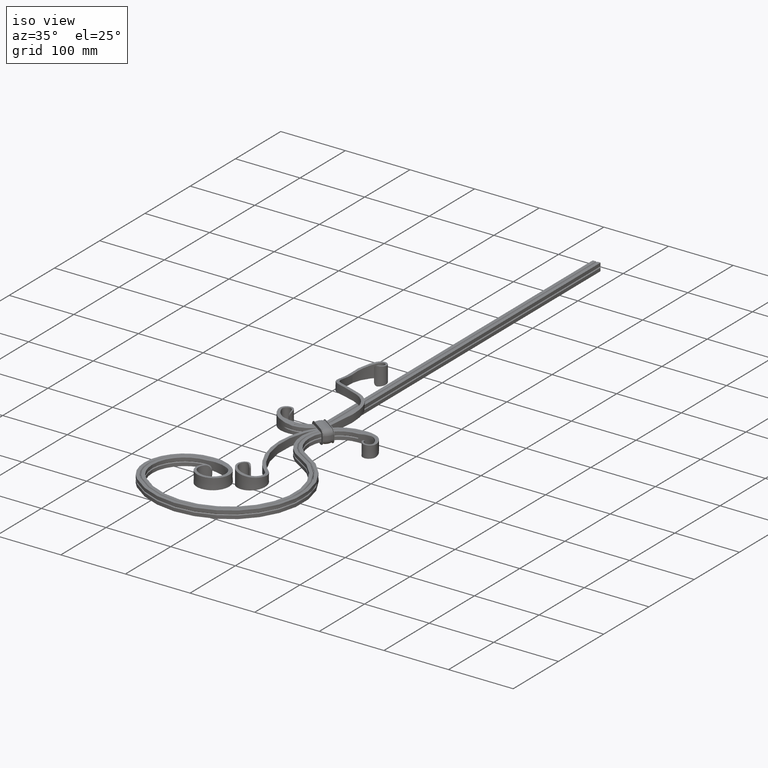
[diagram: clean part render]
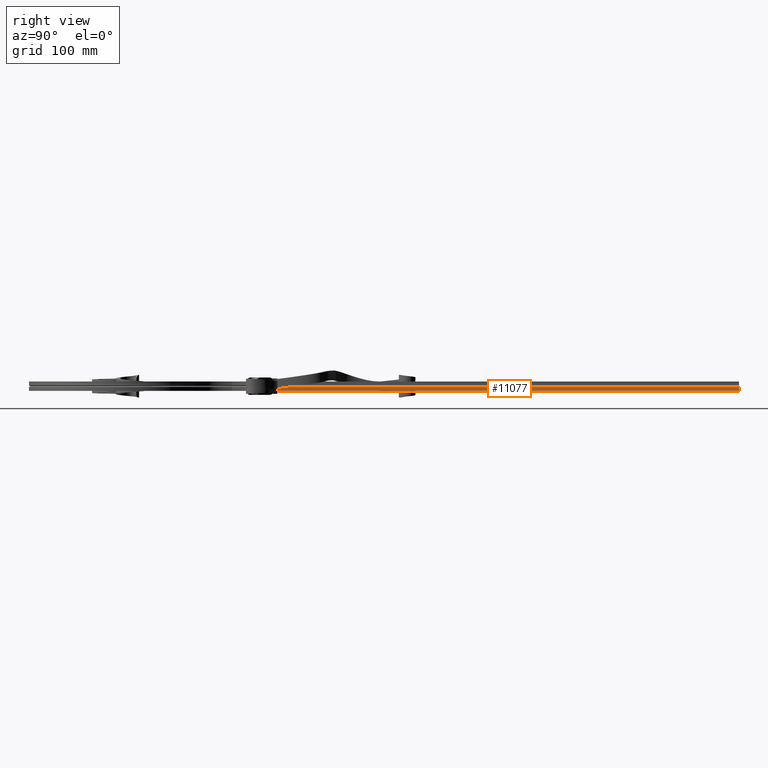
[diagram: tour spotlight — one face highlighted and labeled with its STEP entity id]
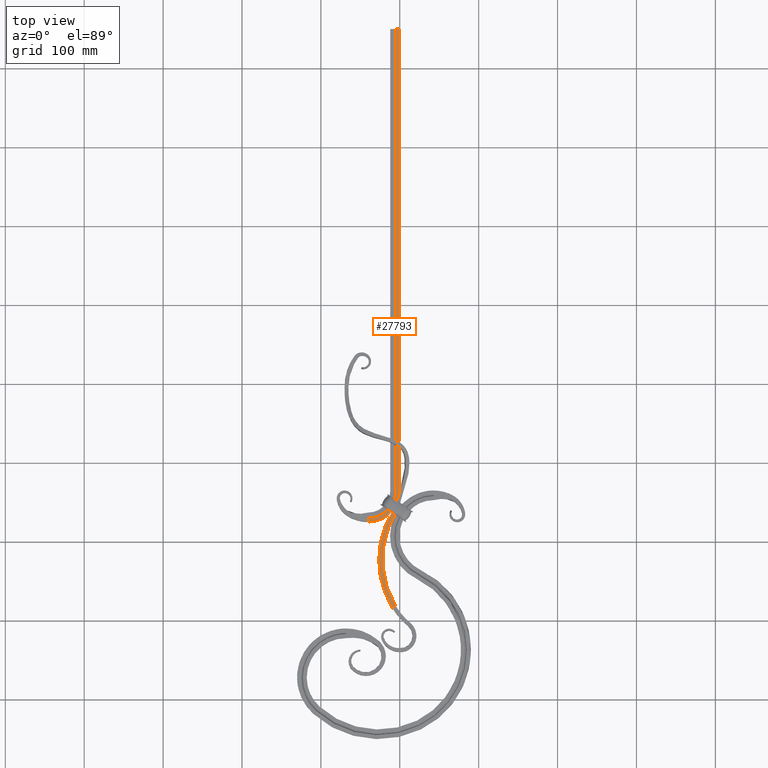
[diagram: tour spotlight — one face highlighted and labeled with its STEP entity id]
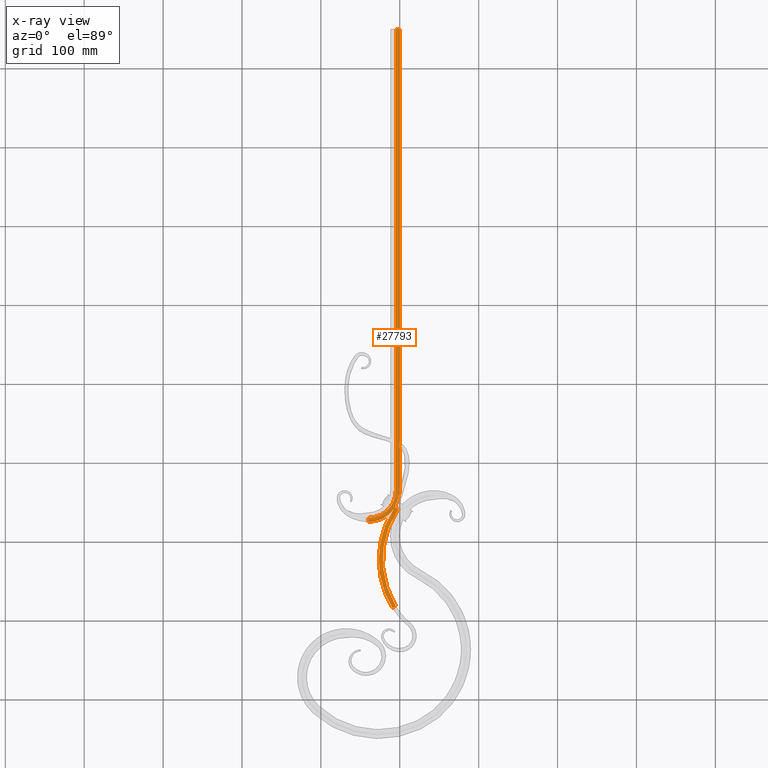
[diagram: x-ray of the same camera — body ghosted, this tour face saturated]
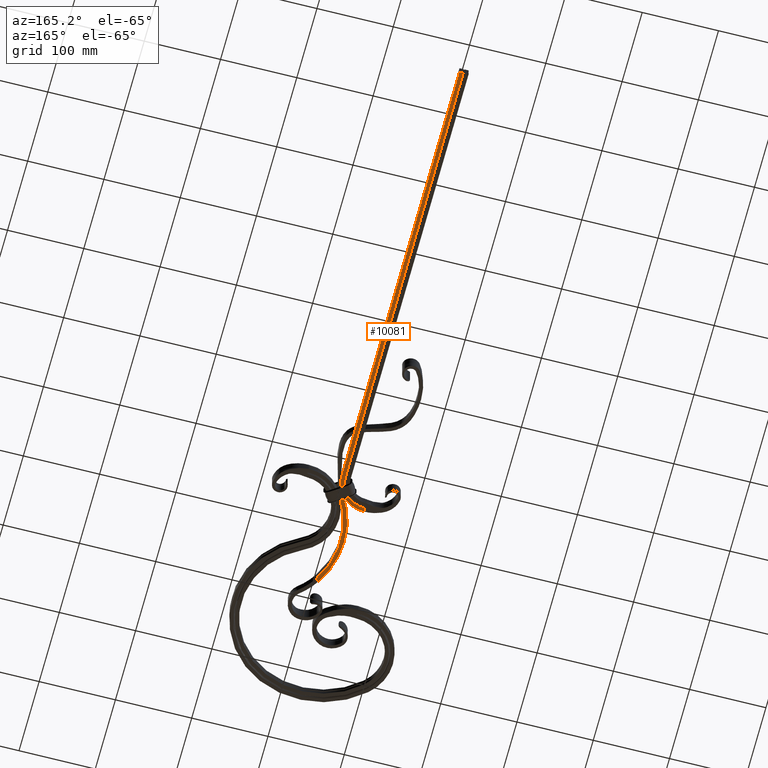
[diagram: tour spotlight — one face highlighted and labeled with its STEP entity id]
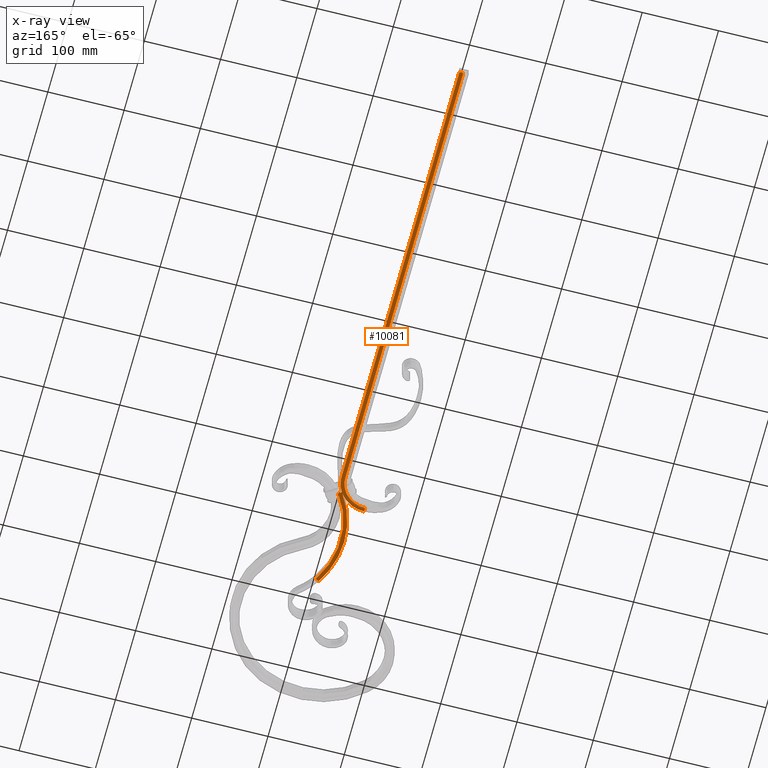
[diagram: x-ray of the same camera — body ghosted, this tour face saturated]
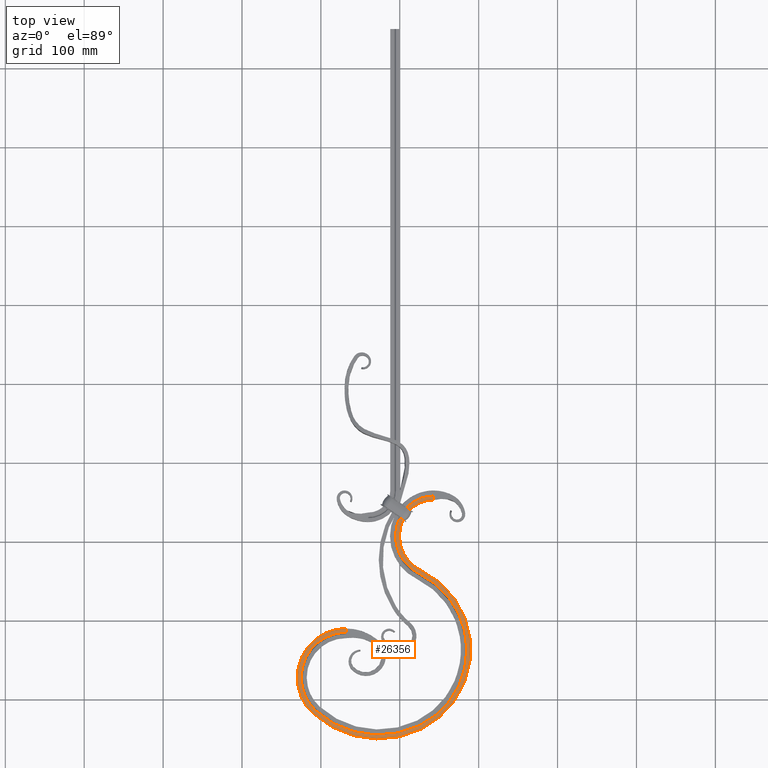
[diagram: tour spotlight — one face highlighted and labeled with its STEP entity id]
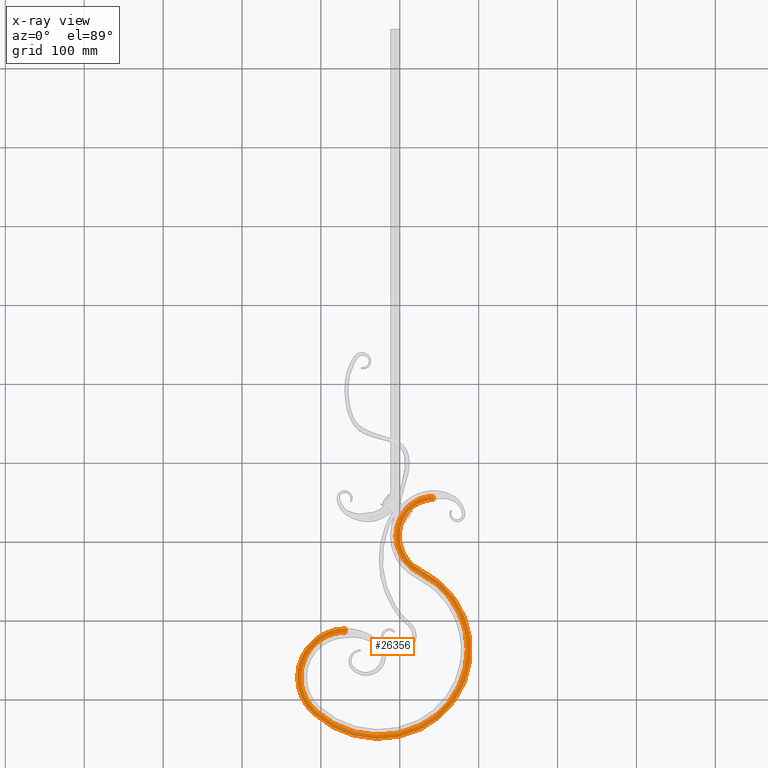
[diagram: x-ray of the same camera — body ghosted, this tour face saturated]
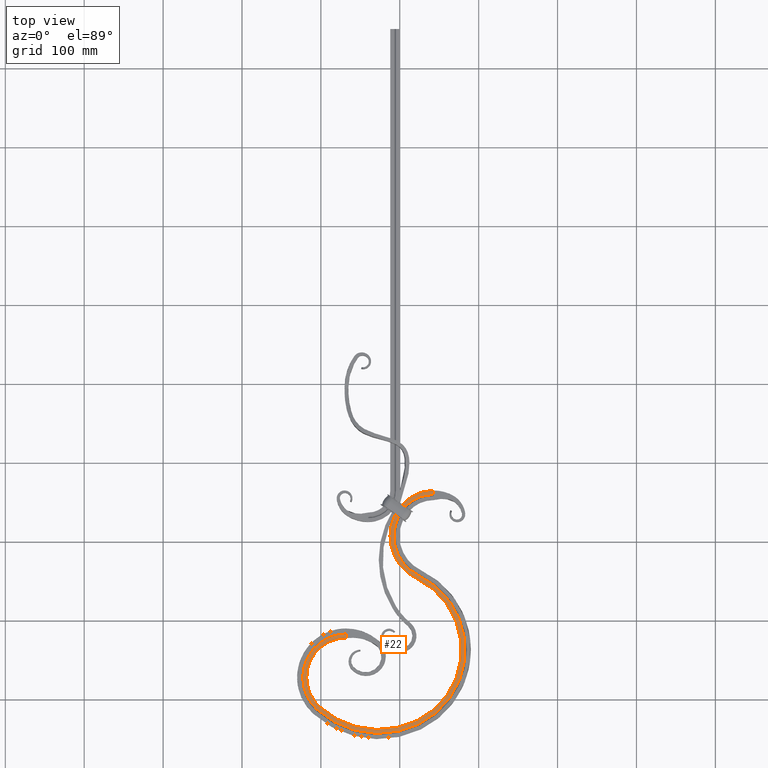
[diagram: tour spotlight — one face highlighted and labeled with its STEP entity id]
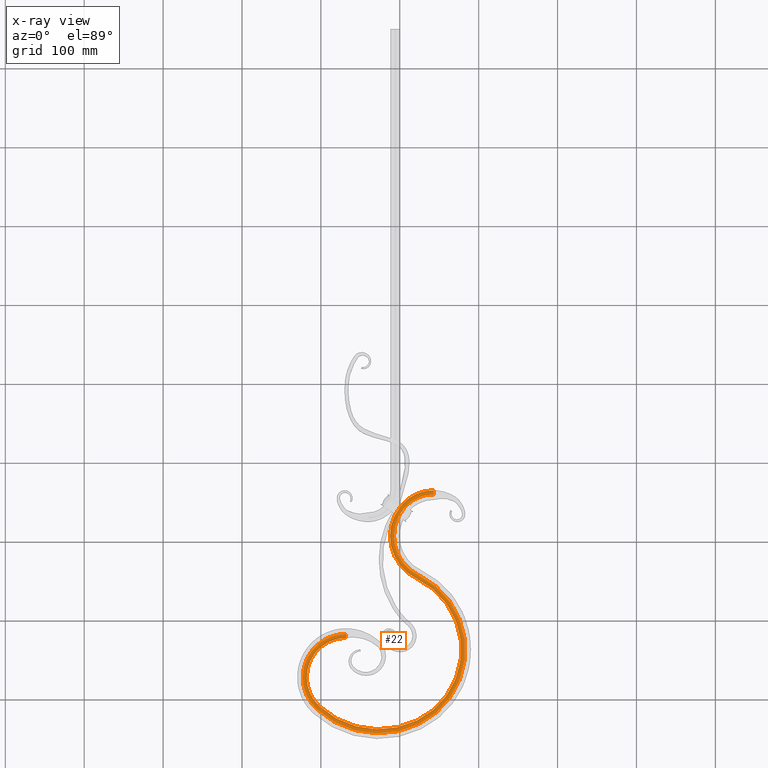
[diagram: x-ray of the same camera — body ghosted, this tour face saturated]
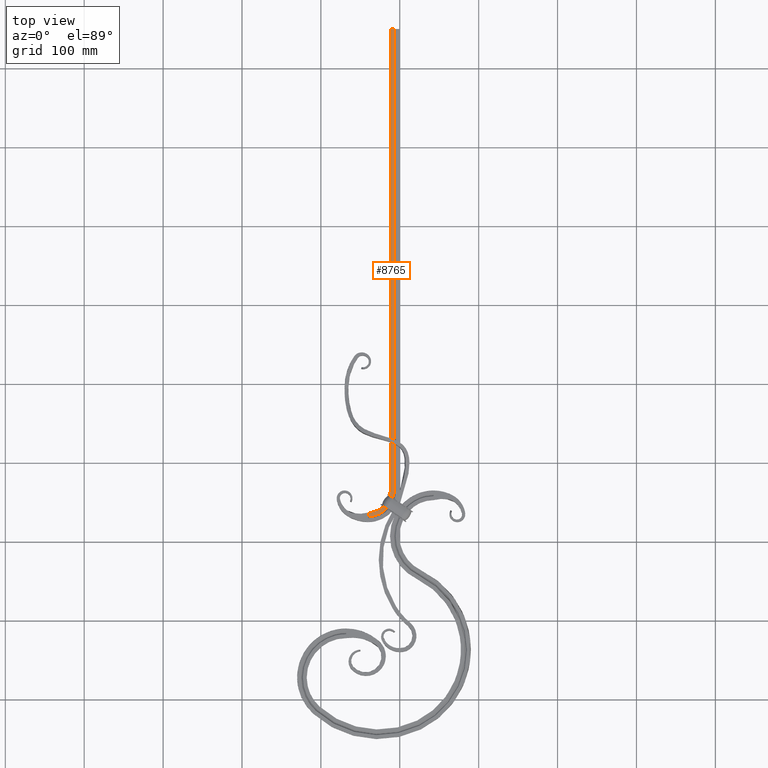
[diagram: tour spotlight — one face highlighted and labeled with its STEP entity id]
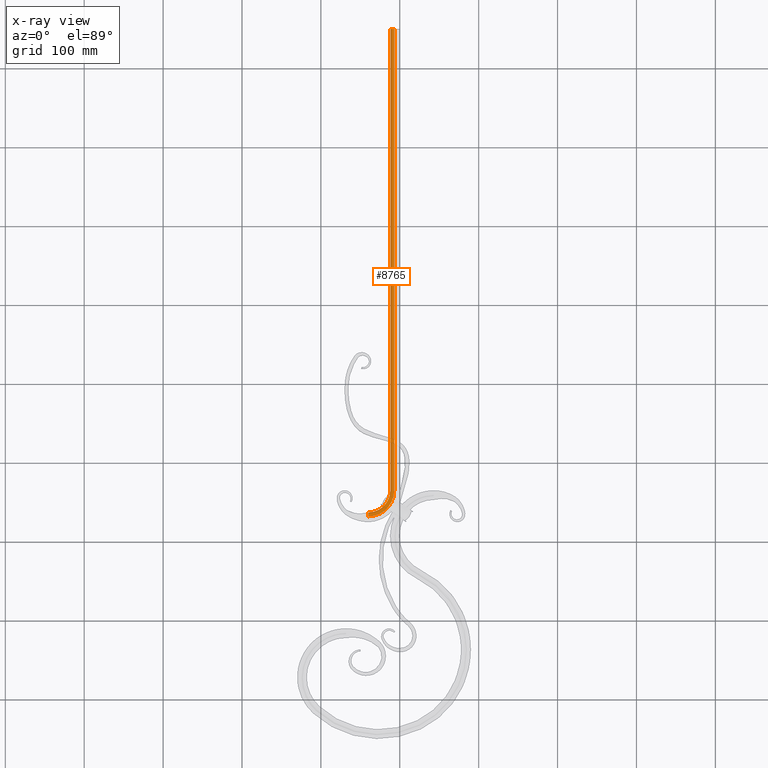
[diagram: x-ray of the same camera — body ghosted, this tour face saturated]
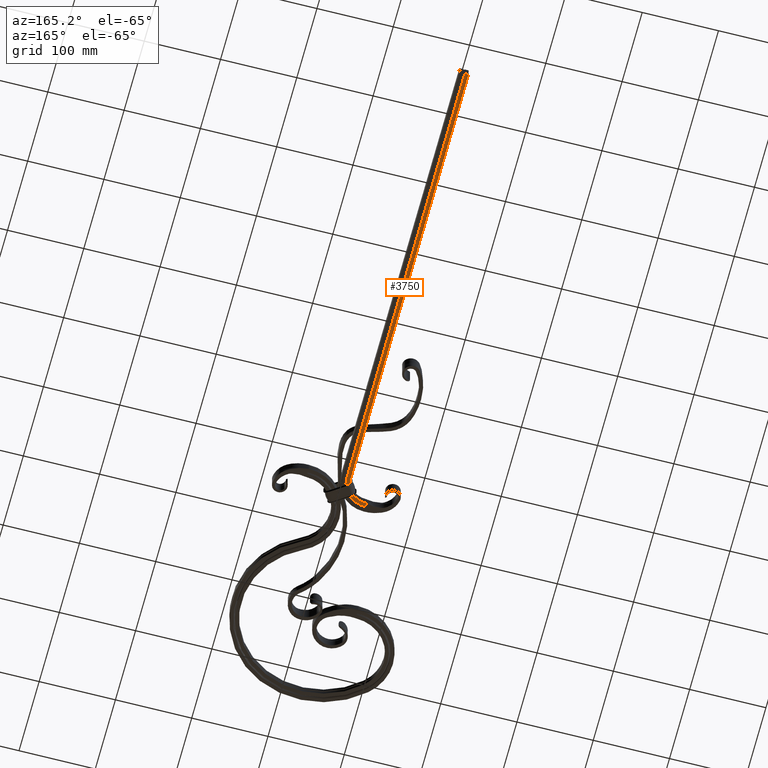
[diagram: tour spotlight — one face highlighted and labeled with its STEP entity id]
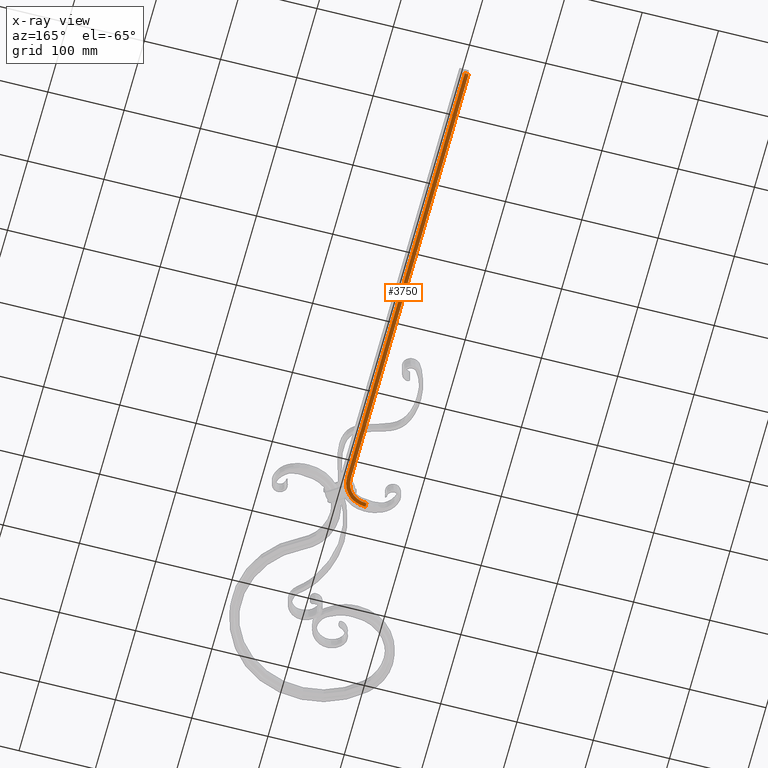
[diagram: x-ray of the same camera — body ghosted, this tour face saturated]
A machine part: a face-by-face anatomy tour. The part has 570 B-rep faces; the first image is the clean iso view, then the 7 largest visible faces are spotlighted one at a time (largest first), each with its STEP entity span.

Face 1 — right view, entity #11077. In plain terms, the highlighted planar face has unit normal (-1, -0, 0).
Definition (entity closure, byte-faithful):
#24 = PLANE ( 'NONE',  #18818 ) ;
#45 = EDGE_CURVE ( 'NONE', #18015, #22247, #25475, .T. ) ;
#377 = FACE_OUTER_BOUND ( 'NONE', #915, .T. ) ;
#915 = EDGE_LOOP ( 'NONE', ( #14862, #20525, #16439, #4296 ) ) ;
#2459 = EDGE_CURVE ( 'NONE', #27864, #4419, #27430, .T. ) ;
#2564 = CARTESIAN_POINT ( 'NONE',  ( -2.195194042401270522E-13, -135.0000000000023874, -1.000000000000000666 ) ) ;
#3125 = LINE ( 'NONE', #19917, #21328 ) ;
#4296 = ORIENTED_EDGE ( 'NONE', *, *, #2459, .T. ) ;
#4419 = VERTEX_POINT ( 'NONE', #9142 ) ;
#4887 = DIRECTION ( 'NONE',  ( 9.044284789280752063E-17, -1.000000000000000000, 0.000000000000000000 ) ) ;
#7293 = DIRECTION ( 'NONE',  ( -0.000000000000000000, -0.000000000000000000, -1.000000000000000000 ) ) ;
#8776 = DIRECTION ( 'NONE',  ( -0.000000000000000000, -0.000000000000000000, -1.000000000000000000 ) ) ;
#9109 = DIRECTION ( 'NONE',  ( 1.034903407035731979E-15, 1.000000000000000000, 0.000000000000000000 ) ) ;
#9142 = CARTESIAN_POINT ( 'NONE',  ( 1.734723475976807094E-15, 450.0000000000000000, -6.000000000000000000 ) ) ;
#9364 = CARTESIAN_POINT ( 'NONE',  ( -6.036837696399288689E-13, -135.0000000000023590, 6.000000000000000000 ) ) ;
#10157 = EDGE_CURVE ( 'NONE', #22247, #4419, #3125, .T. ) ;
#10348 = EDGE_CURVE ( 'NONE', #18015, #27864, #20657, .T. ) ;
#11077 = ADVANCED_FACE ( 'NONE', ( #377 ), #24, .F. ) ;
#12648 = CARTESIAN_POINT ( 'NONE',  ( 3.920475055707584033E-13, 450.0000000000000000, -1.000000000000004441 ) ) ;
#12870 = DIRECTION ( 'NONE',  ( -9.044284789280752063E-17, 1.000000000000000000, -0.000000000000000000 ) ) ;
#14169 = VECTOR ( 'NONE', #9109, 1000.000000000000000 ) ;
#14862 = ORIENTED_EDGE ( 'NONE', *, *, #10157, .F. ) ;
#15062 = VECTOR ( 'NONE', #12870, 1000.000000000000000 ) ;
#15558 = CARTESIAN_POINT ( 'NONE',  ( 1.734723475976807094E-15, 450.0000000000000000, 6.000000000000000000 ) ) ;
#16439 = ORIENTED_EDGE ( 'NONE', *, *, #10348, .T. ) ;
#18015 = VERTEX_POINT ( 'NONE', #28104 ) ;
#18234 = VECTOR ( 'NONE', #7293, 1000.000000000000000 ) ;
#18320 = DIRECTION ( 'NONE',  ( -1.000000000000000000, -9.044284789280752063E-17, 0.000000000000000000 ) ) ;
#18818 = AXIS2_PLACEMENT_3D ( 'NONE', #15558, #18320, #4887 ) ;
#19917 = CARTESIAN_POINT ( 'NONE',  ( 1.734723475976807094E-15, 450.0000000000000000, 6.000000000000000000 ) ) ;
#19966 = CARTESIAN_POINT ( 'NONE',  ( -6.036837696399288689E-13, -135.0000000000023590, -6.000000000000000000 ) ) ;
#20525 = ORIENTED_EDGE ( 'NONE', *, *, #45, .F. ) ;
#20657 = LINE ( 'NONE', #9364, #18234 ) ;
#21328 = VECTOR ( 'NONE', #8776, 1000.000000000000000 ) ;
#22247 = VERTEX_POINT ( 'NONE', #12648 ) ;
#23894 = CARTESIAN_POINT ( 'NONE',  ( 1.734723475976807094E-15, 450.0000000000000000, -6.000000000000000000 ) ) ;
#25475 = LINE ( 'NONE', #2564, #14169 ) ;
#27430 = LINE ( 'NONE', #23894, #15062 ) ;
#27864 = VERTEX_POINT ( 'NONE', #19966 ) ;
#28104 = CARTESIAN_POINT ( 'NONE',  ( -2.195194042401270522E-13, -135.0000000000023874, -1.000000000000000666 ) ) ;

Face 2 — top view, entity #27793. An x-ray twin of the same camera follows (body ghosted, this face saturated) — the face is partly hidden behind the body. In plain terms, the highlighted planar face has unit normal (-0, 0, -1).
Definition (entity closure, byte-faithful):
#224 = CARTESIAN_POINT ( 'NONE',  ( -5.895769711649699651, -155.9021883169973819, 6.000000000000000000 ) ) ;
#582 = CARTESIAN_POINT ( 'NONE',  ( -40.00000000000006395, -135.0000000000023590, 6.000000000000000000 ) ) ;
#698 = CIRCLE ( 'NONE', #9101, 112.5000000000000284 ) ;
#770 = VECTOR ( 'NONE', #23269, 1000.000000000000114 ) ;
#815 = EDGE_CURVE ( 'NONE', #27445, #22432, #6232, .T. ) ;
#1073 = CARTESIAN_POINT ( 'NONE',  ( -4.999999999999999112, 450.0000000000000000, 6.000000000000000000 ) ) ;
#1258 = B_SPLINE_CURVE_WITH_KNOTS ( 'NONE', 3,
 ( #19117, #12703, #16996, #10522, #14902, #6043, #16800 ),
 .UNSPECIFIED., .F., .F.,
 ( 4, 3, 4 ),
 ( 9.483367946369832002E-17, 0.001288718691506187276, 0.002577563415244754109 ),
 .UNSPECIFIED. ) ;
#1391 = DIRECTION ( 'NONE',  ( -1.000000000000000000, 0.000000000000000000, 0.000000000000000000 ) ) ;
#1580 = CARTESIAN_POINT ( 'NONE',  ( -1.802663818172167032, -79.13201271331921305, 6.000000009763361675 ) ) ;
#1768 = CARTESIAN_POINT ( 'NONE',  ( -5.108394884246761691, -281.4245608254663580, 6.000000000000005329 ) ) ;
#2156 = DIRECTION ( 'NONE',  ( -0.8230409562855532934, 0.5679820281281460215, 0.000000000000000000 ) ) ;
#2405 = CARTESIAN_POINT ( 'NONE',  ( 90.81154265190281194, -222.6400766220545506, 6.000000000000005329 ) ) ;
#2428 = CARTESIAN_POINT ( 'NONE',  ( 90.81154265190281194, -222.6400766220545506, 6.000000000000000000 ) ) ;
#2979 = DIRECTION ( 'NONE',  ( 0.000000000000000000, 0.000000000000000000, 1.000000000000000000 ) ) ;
#3269 = ORIENTED_EDGE ( 'NONE', *, *, #14064, .F. ) ;
#3273 = VERTEX_POINT ( 'NONE', #25841 ) ;
#3394 = DIRECTION ( 'NONE',  ( -0.8230409562855530714, 0.5679820281281461325, 0.000000000000000000 ) ) ;
#3583 = CARTESIAN_POINT ( 'NONE',  ( -0.1121695024293156706, -137.9934893013063686, 6.000000000000000000 ) ) ;
#3622 = CARTESIAN_POINT ( 'NONE',  ( -11.99999999999999822, 450.0000000000000000, 6.000000000000000000 ) ) ;
#3723 = FACE_OUTER_BOUND ( 'NONE', #20728, .T. ) ;
#3828 = EDGE_CURVE ( 'NONE', #18868, #16148, #23585, .T. ) ;
#4087 = EDGE_CURVE ( 'NONE', #5348, #21192, #20851, .T. ) ;
#4238 = CARTESIAN_POINT ( 'NONE',  ( 90.81154265190281194, -222.6400766220545506, 6.000000000000000000 ) ) ;
#4649 = DIRECTION ( 'NONE',  ( 1.000000000000000000, -7.930164461608279175E-16, 0.000000000000000000 ) ) ;
#4909 = CARTESIAN_POINT ( 'NONE',  ( -3.891242462084896214, -149.9573446032016193, 6.000000000000010658 ) ) ;
#4914 = DIRECTION ( 'NONE',  ( -1.000000000000000000, 0.000000000000000000, 0.000000000000000000 ) ) ;
#4922 = LINE ( 'NONE', #19628, #26586 ) ;
#5083 = DIRECTION ( 'NONE',  ( -0.8230409562855531824, 0.5679820281281462435, 0.000000000000000000 ) ) ;
#5113 = LINE ( 'NONE', #3622, #21056 ) ;
#5117 = AXIS2_PLACEMENT_3D ( 'NONE', #4238, #19608, #17462 ) ;
#5165 = VERTEX_POINT ( 'NONE', #20526 ) ;
#5293 = VERTEX_POINT ( 'NONE', #7432 ) ;
#5348 = VERTEX_POINT ( 'NONE', #14457 ) ;
#5372 = ORIENTED_EDGE ( 'NONE', *, *, #24342, .T. ) ;
#6041 = CARTESIAN_POINT ( 'NONE',  ( 1.734723475976807094E-15, 450.0000000000000000, 6.000000000000000000 ) ) ;
#6043 = CARTESIAN_POINT ( 'NONE',  ( -1.499035785489023276, -78.82807471584492021, 6.000000000000007105 ) ) ;
#6072 = CARTESIAN_POINT ( 'NONE',  ( -5.108394884246719947, -281.4245608254663580, 6.000000000000005329 ) ) ;
#6196 = AXIS2_PLACEMENT_3D ( 'NONE', #22200, #22575, #4914 ) ;
#6232 = LINE ( 'NONE', #13565, #19671 ) ;
#6448 = DIRECTION ( 'NONE',  ( 0.000000000000000000, 0.000000000000000000, 1.000000000000000000 ) ) ;
#6953 = EDGE_CURVE ( 'NONE', #12307, #5293, #8744, .T. ) ;
#7210 = AXIS2_PLACEMENT_3D ( 'NONE', #2428, #6448, #2156 ) ;
#7236 = CIRCLE ( 'NONE', #7210, 117.5000000000000142 ) ;
#7432 = CARTESIAN_POINT ( 'NONE',  ( -5.895769711649699651, -155.9021883169973819, 6.000000000000000000 ) ) ;
#7917 = VECTOR ( 'NONE', #17085, 1000.000000000000000 ) ;
#8686 = CARTESIAN_POINT ( 'NONE',  ( -4.999999999999999112, 450.0000000000000000, 6.000000000000000000 ) ) ;
#8744 = LINE ( 'NONE', #21063, #13212 ) ;
#8812 = CARTESIAN_POINT ( 'NONE',  ( -0.5683570370132596805, -80.14022724934592645, 6.000000000000003553 ) ) ;
#9089 = AXIS2_PLACEMENT_3D ( 'NONE', #582, #9716, #1391 ) ;
#9101 = AXIS2_PLACEMENT_3D ( 'NONE', #2405, #2979, #5083 ) ;
#9181 = ORIENTED_EDGE ( 'NONE', *, *, #15663, .T. ) ;
#9351 = DIRECTION ( 'NONE',  ( -0.000000000000000000, -1.000000000000000000, 0.000000000000000000 ) ) ;
#9716 = DIRECTION ( 'NONE',  ( 0.000000000000000000, 0.000000000000000000, 1.000000000000000000 ) ) ;
#10167 = EDGE_CURVE ( 'NONE', #14258, #5348, #7236, .T. ) ;
#10219 = B_SPLINE_CURVE_WITH_KNOTS ( 'NONE', 3,
 ( #24386, #11263, #4909, #224 ),
 .UNSPECIFIED., .F., .F.,
 ( 4, 4 ),
 ( 0.0003894684076172827739, 0.01920891239130829292 ),
 .UNSPECIFIED. ) ;
#10522 = CARTESIAN_POINT ( 'NONE',  ( -0.8966942924475533871, -78.21531548609439710, 6.000000000000000000 ) ) ;
#10546 = CARTESIAN_POINT ( 'NONE',  ( 4.896313030454992415E-14, -77.28971556618863303, 6.000000000000000000 ) ) ;
#11057 = EDGE_CURVE ( 'NONE', #12307, #12576, #698, .T. ) ;
#11193 = CARTESIAN_POINT ( 'NONE',  ( -1.780564930221888664, -158.7420984576380079, 6.000000000000005329 ) ) ;
#11263 = CARTESIAN_POINT ( 'NONE',  ( -1.922266057329161004, -144.0010359231515622, 5.999999999999997335 ) ) ;
#11511 = CIRCLE ( 'NONE', #9089, 39.99999999999945288 ) ;
#12023 = ORIENTED_EDGE ( 'NONE', *, *, #10167, .T. ) ;
#12072 = LINE ( 'NONE', #6041, #7917 ) ;
#12307 = VERTEX_POINT ( 'NONE', #11193 ) ;
#12576 = VERTEX_POINT ( 'NONE', #1768 ) ;
#12703 = CARTESIAN_POINT ( 'NONE',  ( -0.2974662768523643197, -77.59962956735279249, 5.999999999999999112 ) ) ;
#12723 = AXIS2_PLACEMENT_3D ( 'NONE', #12773, #14967, #28239 ) ;
#12726 = ORIENTED_EDGE ( 'NONE', *, *, #19922, .F. ) ;
#12758 = ORIENTED_EDGE ( 'NONE', *, *, #19127, .T. ) ;
#12773 = CARTESIAN_POINT ( 'NONE',  ( -40.00000000000006395, -135.0000000000023590, 6.000000000000000000 ) ) ;
#13212 = VECTOR ( 'NONE', #3394, 1000.000000000000114 ) ;
#13290 = CARTESIAN_POINT ( 'NONE',  ( -7.696119377510454385, -158.5893894946013631, 6.000000000000000000 ) ) ;
#13565 = CARTESIAN_POINT ( 'NONE',  ( -39.99999028598938366, -135.0000000000023590, 6.000000000000000000 ) ) ;
#14002 = ORIENTED_EDGE ( 'NONE', *, *, #22286, .F. ) ;
#14064 = EDGE_CURVE ( 'NONE', #27959, #24252, #1258, .T. ) ;
#14172 = LINE ( 'NONE', #6072, #770 ) ;
#14224 = CARTESIAN_POINT ( 'NONE',  ( -39.99999000028314811, -170.0000000000006537, 6.000000000000000000 ) ) ;
#14258 = VERTEX_POINT ( 'NONE', #13290 ) ;
#14457 = CARTESIAN_POINT ( 'NONE',  ( -26.68845734809723069, -222.6400766220545506, 6.000000000000000000 ) ) ;
#14558 = AXIS2_PLACEMENT_3D ( 'NONE', #19847, #17789, #4649 ) ;
#14732 = CARTESIAN_POINT ( 'NONE',  ( -9.371503219186713807, -284.0372045678402060, 6.000000000000000000 ) ) ;
#14853 = VERTEX_POINT ( 'NONE', #8686 ) ;
#14902 = CARTESIAN_POINT ( 'NONE',  ( -1.197099465996645851, -78.52243927068401774, 6.000000000000000000 ) ) ;
#14967 = DIRECTION ( 'NONE',  ( -0.000000000000000000, 0.000000000000000000, -1.000000000000000000 ) ) ;
#15663 = EDGE_CURVE ( 'NONE', #5165, #14853, #5113, .T. ) ;
#16094 = ORIENTED_EDGE ( 'NONE', *, *, #6953, .T. ) ;
#16102 = ORIENTED_EDGE ( 'NONE', *, *, #815, .T. ) ;
#16148 = VERTEX_POINT ( 'NONE', #17937 ) ;
#16379 = EDGE_CURVE ( 'NONE', #22432, #14258, #11511, .T. ) ;
#16800 = CARTESIAN_POINT ( 'NONE',  ( -1.802663818172167032, -79.13201271331921305, 6.000000009763361675 ) ) ;
#16814 = ORIENTED_EDGE ( 'NONE', *, *, #4087, .T. ) ;
#16942 = CARTESIAN_POINT ( 'NONE',  ( -1.169909846325088321, -79.61818929474870288, 6.000000009763361675 ) ) ;
#16981 = B_SPLINE_CURVE_WITH_KNOTS ( 'NONE', 3,
 ( #1580, #16942, #8812, #23978 ),
 .UNSPECIFIED., .F., .F.,
 ( 4, 4 ),
 ( 0.000000000000000000, 0.002389455051207549884 ),
 .UNSPECIFIED. ) ;
#16996 = CARTESIAN_POINT ( 'NONE',  ( -0.5963179398600596537, -77.90822116705192002, 6.000000000000000000 ) ) ;
#17085 = DIRECTION ( 'NONE',  ( -9.044284789280752063E-17, 1.000000000000000000, -0.000000000000000000 ) ) ;
#17316 = LINE ( 'NONE', #1073, #23139 ) ;
#17462 = DIRECTION ( 'NONE',  ( -0.8230409562855532934, 0.5679820281281460215, 0.000000000000000000 ) ) ;
#17646 = ORIENTED_EDGE ( 'NONE', *, *, #23483, .F. ) ;
#17789 = DIRECTION ( 'NONE',  ( -0.000000000000000000, -0.000000000000000000, -1.000000000000000000 ) ) ;
#17937 = CARTESIAN_POINT ( 'NONE',  ( -6.036837696399288689E-13, -135.0000000000023590, 6.000000000000000000 ) ) ;
#18158 = EDGE_CURVE ( 'NONE', #14853, #26610, #17316, .T. ) ;
#18480 = ORIENTED_EDGE ( 'NONE', *, *, #18158, .T. ) ;
#18733 = CARTESIAN_POINT ( 'NONE',  ( -1.802663818172167032, -79.13201271331921305, 6.000000009763361675 ) ) ;
#18868 = VERTEX_POINT ( 'NONE', #3583 ) ;
#19117 = CARTESIAN_POINT ( 'NONE',  ( 4.896313030454992415E-14, -77.28971556618863303, 6.000000000000000000 ) ) ;
#19127 = EDGE_CURVE ( 'NONE', #27959, #5165, #4922, .T. ) ;
#19608 = DIRECTION ( 'NONE',  ( 0.000000000000000000, 0.000000000000000000, 1.000000000000000000 ) ) ;
#19628 = CARTESIAN_POINT ( 'NONE',  ( 1.734723475976807094E-15, 450.0000000000000000, 6.000000000000000000 ) ) ;
#19671 = VECTOR ( 'NONE', #9351, 1000.000000000000000 ) ;
#19847 = CARTESIAN_POINT ( 'NONE',  ( -40.00000000000006395, -135.0000000000023590, 6.000000000000000000 ) ) ;
#19922 = EDGE_CURVE ( 'NONE', #12576, #21192, #14172, .T. ) ;
#20050 = CIRCLE ( 'NONE', #14558, 34.99999999999992184 ) ;
#20526 = CARTESIAN_POINT ( 'NONE',  ( 1.734723475976807094E-15, 450.0000000000000000, 6.000000000000000000 ) ) ;
#20728 = EDGE_LOOP ( 'NONE', ( #25402, #12023, #16814, #12726, #23944, #16094, #17646, #27644, #5372, #14002, #3269, #12758, #9181, #18480, #21431, #16102 ) ) ;
#20851 = CIRCLE ( 'NONE', #5117, 117.5000000000000142 ) ;
#21056 = VECTOR ( 'NONE', #21182, 1000.000000000000000 ) ;
#21063 = CARTESIAN_POINT ( 'NONE',  ( -5.895769711649641920, -155.9021883169972966, 6.000000000000005329 ) ) ;
#21182 = DIRECTION ( 'NONE',  ( -1.000000000000000000, -0.000000000000000000, -0.000000000000000000 ) ) ;
#21192 = VERTEX_POINT ( 'NONE', #14732 ) ;
#21431 = ORIENTED_EDGE ( 'NONE', *, *, #28167, .T. ) ;
#22200 = CARTESIAN_POINT ( 'NONE',  ( -40.00000000000006395, -135.0000000000023590, 6.000000000000000000 ) ) ;
#22286 = EDGE_CURVE ( 'NONE', #24252, #3273, #16981, .T. ) ;
#22432 = VERTEX_POINT ( 'NONE', #24490 ) ;
#22575 = DIRECTION ( 'NONE',  ( 0.000000000000000000, 0.000000000000000000, 1.000000000000000000 ) ) ;
#23139 = VECTOR ( 'NONE', #25439, 1000.000000000000000 ) ;
#23269 = DIRECTION ( 'NONE',  ( -0.8526216669879949084, -0.5225287484747730415, -1.040834085586084848E-15 ) ) ;
#23483 = EDGE_CURVE ( 'NONE', #18868, #5293, #10219, .T. ) ;
#23585 = CIRCLE ( 'NONE', #6196, 39.99999999999945288 ) ;
#23944 = ORIENTED_EDGE ( 'NONE', *, *, #11057, .F. ) ;
#23978 = CARTESIAN_POINT ( 'NONE',  ( 4.973278075747797793E-14, -80.70041910210818514, 6.000000000000000000 ) ) ;
#24252 = VERTEX_POINT ( 'NONE', #18733 ) ;
#24342 = EDGE_CURVE ( 'NONE', #16148, #3273, #12072, .T. ) ;
#24386 = CARTESIAN_POINT ( 'NONE',  ( -0.1121695024293156706, -137.9934893013063686, 6.000000000000000000 ) ) ;
#24490 = CARTESIAN_POINT ( 'NONE',  ( -39.99999028598938366, -175.0000000000003126, 6.000000000000000000 ) ) ;
#24821 = CARTESIAN_POINT ( 'NONE',  ( -5.000000000000595968, -135.0000000000023874, 6.000000000000000000 ) ) ;
#25402 = ORIENTED_EDGE ( 'NONE', *, *, #16379, .T. ) ;
#25439 = DIRECTION ( 'NONE',  ( -1.020076710659861836E-15, -1.000000000000000000, 0.000000000000000000 ) ) ;
#25841 = CARTESIAN_POINT ( 'NONE',  ( 4.973278075747797793E-14, -80.70041910210818514, 6.000000000000000000 ) ) ;
#25903 = PLANE ( 'NONE',  #12723 ) ;
#26586 = VECTOR ( 'NONE', #28459, 1000.000000000000000 ) ;
#26610 = VERTEX_POINT ( 'NONE', #24821 ) ;
#27445 = VERTEX_POINT ( 'NONE', #14224 ) ;
#27644 = ORIENTED_EDGE ( 'NONE', *, *, #3828, .T. ) ;
#27793 = ADVANCED_FACE ( 'NONE', ( #3723 ), #25903, .F. ) ;
#27959 = VERTEX_POINT ( 'NONE', #10546 ) ;
#28167 = EDGE_CURVE ( 'NONE', #26610, #27445, #20050, .T. ) ;
#28239 = DIRECTION ( 'NONE',  ( -1.000000000000000000, 0.000000000000000000, 0.000000000000000000 ) ) ;
#28459 = DIRECTION ( 'NONE',  ( -9.044284789280752063E-17, 1.000000000000000000, -0.000000000000000000 ) ) ;

Face 3 — auxiliary view, entity #10081. An x-ray twin of the same camera follows (body ghosted, this face saturated) — the face is partly hidden behind the body. In plain terms, the highlighted planar face has unit normal (-0, 0, -1).
Definition (entity closure, byte-faithful):
#50 = CIRCLE ( 'NONE', #15752, 34.99999999999992184 ) ;
#66 = ORIENTED_EDGE ( 'NONE', *, *, #22052, .F. ) ;
#160 = EDGE_CURVE ( 'NONE', #14990, #25381, #15894, .T. ) ;
#388 = CARTESIAN_POINT ( 'NONE',  ( -5.108394884246761691, -281.4245608254663580, -5.999999999999994671 ) ) ;
#418 = VECTOR ( 'NONE', #11408, 1000.000000000000000 ) ;
#524 = EDGE_LOOP ( 'NONE', ( #18653, #2871, #13852, #27221, #19722, #6898, #14885, #10540, #66, #8347, #21283, #7422 ) ) ;
#585 = CARTESIAN_POINT ( 'NONE',  ( -5.000000000000595968, -135.0000000000023874, -6.000000000000000000 ) ) ;
#593 = DIRECTION ( 'NONE',  ( -1.000000000000000000, 0.000000000000000000, 0.000000000000000000 ) ) ;
#1013 = CARTESIAN_POINT ( 'NONE',  ( -4.999999999999999112, 450.0000000000000000, -6.000000000000000000 ) ) ;
#1084 = LINE ( 'NONE', #26674, #418 ) ;
#1281 = VECTOR ( 'NONE', #19084, 1000.000000000000000 ) ;
#1812 = VERTEX_POINT ( 'NONE', #28013 ) ;
#1908 = VERTEX_POINT ( 'NONE', #1013 ) ;
#1963 = CARTESIAN_POINT ( 'NONE',  ( -40.00000000000006395, -135.0000000000023590, -6.000000000000000000 ) ) ;
#2032 = CIRCLE ( 'NONE', #15754, 39.99999999999945288 ) ;
#2070 = DIRECTION ( 'NONE',  ( -0.8230409562855531824, 0.5679820281281462435, 0.000000000000000000 ) ) ;
#2213 = CARTESIAN_POINT ( 'NONE',  ( -39.99999028598939077, -170.0000000000009379, -6.000000000000000000 ) ) ;
#2459 = EDGE_CURVE ( 'NONE', #27864, #4419, #27430, .T. ) ;
#2871 = ORIENTED_EDGE ( 'NONE', *, *, #24120, .T. ) ;
#3039 = CARTESIAN_POINT ( 'NONE',  ( -9.372418441294620095, -284.0377654612365745, -5.999999999999998224 ) ) ;
#3390 = CARTESIAN_POINT ( 'NONE',  ( -7.707736425305220962, -158.6052899415047364, -6.000000000000000000 ) ) ;
#4264 = CARTESIAN_POINT ( 'NONE',  ( -5.895769711649650802, -155.9021883169972966, -6.000000000000000000 ) ) ;
#4419 = VERTEX_POINT ( 'NONE', #9142 ) ;
#5262 = CARTESIAN_POINT ( 'NONE',  ( -40.00000000000006395, -135.0000000000023590, -6.000000000000000000 ) ) ;
#5732 = AXIS2_PLACEMENT_3D ( 'NONE', #1963, #23638, #21542 ) ;
#6898 = ORIENTED_EDGE ( 'NONE', *, *, #21288, .F. ) ;
#6907 = CARTESIAN_POINT ( 'NONE',  ( -26.68953076922092649, -222.6400766220545506, -5.999999999999998224 ) ) ;
#7422 = ORIENTED_EDGE ( 'NONE', *, *, #2459, .F. ) ;
#8001 = CARTESIAN_POINT ( 'NONE',  ( 90.81154265190281194, -222.6400766220545506, -5.999999999999998224 ) ) ;
#8013 = LINE ( 'NONE', #16328, #21809 ) ;
#8272 = CIRCLE ( 'NONE', #27322, 117.5010734211237491 ) ;
#8347 = ORIENTED_EDGE ( 'NONE', *, *, #21036, .F. ) ;
#9142 = CARTESIAN_POINT ( 'NONE',  ( 1.734723475976807094E-15, 450.0000000000000000, -6.000000000000000000 ) ) ;
#9198 = EDGE_CURVE ( 'NONE', #24484, #27864, #24452, .T. ) ;
#10081 = ADVANCED_FACE ( 'NONE', ( #18946 ), #15105, .T. ) ;
#10360 = DIRECTION ( 'NONE',  ( -0.8230409562855530714, 0.5679820281281462435, 0.000000000000000000 ) ) ;
#10540 = ORIENTED_EDGE ( 'NONE', *, *, #27678, .F. ) ;
#10843 = CARTESIAN_POINT ( 'NONE',  ( -5.895769711649641920, -155.9021883169972966, -5.999999999999994671 ) ) ;
#11131 = AXIS2_PLACEMENT_3D ( 'NONE', #15708, #15437, #13519 ) ;
#11408 = DIRECTION ( 'NONE',  ( -1.020076710659861836E-15, -1.000000000000000000, -0.000000000000000000 ) ) ;
#11718 = LINE ( 'NONE', #10843, #26159 ) ;
#11892 = DIRECTION ( 'NONE',  ( 1.000000000000000000, -7.930164461608279175E-16, 0.000000000000000000 ) ) ;
#12031 = DIRECTION ( 'NONE',  ( -1.000000000000000000, -0.000000000000000000, -0.000000000000000000 ) ) ;
#12190 = CARTESIAN_POINT ( 'NONE',  ( -39.99999028598939077, -135.0000000000023590, -6.000000000000000000 ) ) ;
#12870 = DIRECTION ( 'NONE',  ( -9.044284789280752063E-17, 1.000000000000000000, -0.000000000000000000 ) ) ;
#13042 = DIRECTION ( 'NONE',  ( 0.8230409562855530714, -0.5679820281281461325, 0.000000000000000000 ) ) ;
#13278 = EDGE_CURVE ( 'NONE', #1812, #24225, #2032, .T. ) ;
#13286 = AXIS2_PLACEMENT_3D ( 'NONE', #15316, #17209, #2070 ) ;
#13519 = DIRECTION ( 'NONE',  ( -0.8230409562855530714, 0.5679820281281462435, 0.000000000000000000 ) ) ;
#13852 = ORIENTED_EDGE ( 'NONE', *, *, #27003, .T. ) ;
#14637 = DIRECTION ( 'NONE',  ( 0.000000000000000000, 0.000000000000000000, 1.000000000000000000 ) ) ;
#14885 = ORIENTED_EDGE ( 'NONE', *, *, #13278, .F. ) ;
#14990 = VERTEX_POINT ( 'NONE', #6907 ) ;
#15062 = VECTOR ( 'NONE', #12870, 1000.000000000000000 ) ;
#15105 = PLANE ( 'NONE',  #5732 ) ;
#15316 = CARTESIAN_POINT ( 'NONE',  ( 90.81154265190281194, -222.6400766220545506, -5.999999999999994671 ) ) ;
#15420 = LINE ( 'NONE', #12190, #1281 ) ;
#15437 = DIRECTION ( 'NONE',  ( 0.000000000000000000, 0.000000000000000000, 1.000000000000000000 ) ) ;
#15708 = CARTESIAN_POINT ( 'NONE',  ( 90.81154265190281194, -222.6400766220545506, -5.999999999999998224 ) ) ;
#15752 = AXIS2_PLACEMENT_3D ( 'NONE', #5262, #20643, #11892 ) ;
#15754 = AXIS2_PLACEMENT_3D ( 'NONE', #18228, #17946, #20282 ) ;
#15849 = CARTESIAN_POINT ( 'NONE',  ( -40.00000000000006395, -135.0000000000023590, -6.000000000000000000 ) ) ;
#15894 = CIRCLE ( 'NONE', #11131, 117.5010734211237491 ) ;
#16328 = CARTESIAN_POINT ( 'NONE',  ( -11.99999999999999822, 450.0000000000000000, -6.000000000000000000 ) ) ;
#17134 = AXIS2_PLACEMENT_3D ( 'NONE', #15849, #17950, #593 ) ;
#17209 = DIRECTION ( 'NONE',  ( 0.000000000000000000, 0.000000000000000000, 1.000000000000000000 ) ) ;
#17946 = DIRECTION ( 'NONE',  ( 0.000000000000000000, 0.000000000000000000, 1.000000000000000000 ) ) ;
#17950 = DIRECTION ( 'NONE',  ( 0.000000000000000000, 0.000000000000000000, 1.000000000000000000 ) ) ;
#18205 = EDGE_CURVE ( 'NONE', #4419, #1908, #8013, .T. ) ;
#18228 = CARTESIAN_POINT ( 'NONE',  ( -40.00000000000006395, -135.0000000000023590, -6.000000000000000000 ) ) ;
#18653 = ORIENTED_EDGE ( 'NONE', *, *, #9198, .F. ) ;
#18946 = FACE_OUTER_BOUND ( 'NONE', #524, .T. ) ;
#19084 = DIRECTION ( 'NONE',  ( -0.000000000000000000, -1.000000000000000000, 0.000000000000000000 ) ) ;
#19385 = VERTEX_POINT ( 'NONE', #25125 ) ;
#19722 = ORIENTED_EDGE ( 'NONE', *, *, #160, .F. ) ;
#19966 = CARTESIAN_POINT ( 'NONE',  ( -6.036837696399288689E-13, -135.0000000000023590, -6.000000000000000000 ) ) ;
#20282 = DIRECTION ( 'NONE',  ( -1.000000000000000000, 0.000000000000000000, 0.000000000000000000 ) ) ;
#20643 = DIRECTION ( 'NONE',  ( 0.000000000000000000, 0.000000000000000000, -1.000000000000000000 ) ) ;
#21026 = VERTEX_POINT ( 'NONE', #2213 ) ;
#21036 = EDGE_CURVE ( 'NONE', #1908, #26255, #1084, .T. ) ;
#21283 = ORIENTED_EDGE ( 'NONE', *, *, #18205, .F. ) ;
#21288 = EDGE_CURVE ( 'NONE', #24225, #14990, #8272, .T. ) ;
#21542 = DIRECTION ( 'NONE',  ( -1.000000000000000000, 0.000000000000000000, 0.000000000000000000 ) ) ;
#21809 = VECTOR ( 'NONE', #12031, 1000.000000000000000 ) ;
#21950 = CIRCLE ( 'NONE', #13286, 112.5000000000000284 ) ;
#21960 = VERTEX_POINT ( 'NONE', #388 ) ;
#22052 = EDGE_CURVE ( 'NONE', #26255, #21026, #50, .T. ) ;
#23401 = LINE ( 'NONE', #25911, #26514 ) ;
#23597 = DIRECTION ( 'NONE',  ( 0.8526216669879962406, 0.5225287484747708211, 6.937404552589144289E-16 ) ) ;
#23638 = DIRECTION ( 'NONE',  ( -0.000000000000000000, 0.000000000000000000, -1.000000000000000000 ) ) ;
#23777 = EDGE_CURVE ( 'NONE', #25381, #21960, #23401, .T. ) ;
#23894 = CARTESIAN_POINT ( 'NONE',  ( 1.734723475976807094E-15, 450.0000000000000000, -6.000000000000000000 ) ) ;
#24120 = EDGE_CURVE ( 'NONE', #24484, #19385, #11718, .T. ) ;
#24225 = VERTEX_POINT ( 'NONE', #3390 ) ;
#24452 = CIRCLE ( 'NONE', #17134, 39.99999999999945288 ) ;
#24484 = VERTEX_POINT ( 'NONE', #4264 ) ;
#25125 = CARTESIAN_POINT ( 'NONE',  ( -1.780564930221888664, -158.7420984576380079, -5.999999999999994671 ) ) ;
#25381 = VERTEX_POINT ( 'NONE', #3039 ) ;
#25911 = CARTESIAN_POINT ( 'NONE',  ( -9.372418441294605884, -284.0377654612365745, -5.999999999999998224 ) ) ;
#26159 = VECTOR ( 'NONE', #13042, 1000.000000000000114 ) ;
#26255 = VERTEX_POINT ( 'NONE', #585 ) ;
#26514 = VECTOR ( 'NONE', #23597, 1000.000000000000000 ) ;
#26674 = CARTESIAN_POINT ( 'NONE',  ( -4.999999999999999112, 450.0000000000000000, -6.000000000000000000 ) ) ;
#27003 = EDGE_CURVE ( 'NONE', #19385, #21960, #21950, .T. ) ;
#27221 = ORIENTED_EDGE ( 'NONE', *, *, #23777, .F. ) ;
#27322 = AXIS2_PLACEMENT_3D ( 'NONE', #8001, #14637, #10360 ) ;
#27430 = LINE ( 'NONE', #23894, #15062 ) ;
#27678 = EDGE_CURVE ( 'NONE', #21026, #1812, #15420, .T. ) ;
#27864 = VERTEX_POINT ( 'NONE', #19966 ) ;
#28013 = CARTESIAN_POINT ( 'NONE',  ( -39.99999028598938366, -175.0000000000003126, -6.000000000000000000 ) ) ;

Face 4 — top view, entity #26356. An x-ray twin of the same camera follows (body ghosted, this face saturated) — the face is partly hidden behind the body. In plain terms, the highlighted planar face has unit normal (-0, 0, 1).
Definition (entity closure, byte-faithful):
#116 = CARTESIAN_POINT ( 'NONE',  ( -26.81747943605198614, -327.0000000000000000, 6.000000000000007994 ) ) ;
#384 = ORIENTED_EDGE ( 'NONE', *, *, #16229, .F. ) ;
#448 = CARTESIAN_POINT ( 'NONE',  ( 42.97590011563531931, -145.3333364495902913, 6.000000000000000000 ) ) ;
#555 = CARTESIAN_POINT ( 'NONE',  ( -68.00000000000000000, -315.0008306499373134, 6.000000000000000000 ) ) ;
#573 = AXIS2_PLACEMENT_3D ( 'NONE', #21386, #21189, #8020 ) ;
#673 = CARTESIAN_POINT ( 'NONE',  ( -68.00000000000000000, -311.6669435499791234, 6.000000000000001776 ) ) ;
#710 = CARTESIAN_POINT ( 'NONE',  ( 6.738960187345486297, -159.0686755282468994, 5.999999999999943157 ) ) ;
#781 = CIRCLE ( 'NONE', #22486, 118.0000000000000853 ) ;
#1115 = CARTESIAN_POINT ( 'NONE',  ( -119.6303799144820488, -396.8069051823210316, 6.000000000000009770 ) ) ;
#1210 = CARTESIAN_POINT ( 'NONE',  ( -113.5846839161151109, -337.2493252170113465, 6.000000000000015987 ) ) ;
#1228 = AXIS2_PLACEMENT_3D ( 'NONE', #25736, #21443, #8960 ) ;
#1299 = AXIS2_PLACEMENT_3D ( 'NONE', #25341, #23142, #10224 ) ;
#1363 = VERTEX_POINT ( 'NONE', #20414 ) ;
#1490 = DIRECTION ( 'NONE',  ( 0.000000000000000000, -0.000000000000000000, -1.000000000000000000 ) ) ;
#1621 = DIRECTION ( 'NONE',  ( 1.000000000000000000, 0.000000000000000000, 0.000000000000000000 ) ) ;
#2121 = VERTEX_POINT ( 'NONE', #555 ) ;
#2280 = CARTESIAN_POINT ( 'NONE',  ( 85.00000000000012790, -336.8889783033039294, 6.000000000000007994 ) ) ;
#2410 = CIRCLE ( 'NONE', #12022, 107.0000000000001421 ) ;
#2472 = ORIENTED_EDGE ( 'NONE', *, *, #7365, .T. ) ;
#2656 = CARTESIAN_POINT ( 'NONE',  ( 42.97590011563530510, -142.0000000000022737, 6.000000000000005329 ) ) ;
#2818 = AXIS2_PLACEMENT_3D ( 'NONE', #27000, #26811, #9473 ) ;
#2967 = EDGE_CURVE ( 'NONE', #1363, #28387, #4623, .T. ) ;
#3341 = CARTESIAN_POINT ( 'NONE',  ( -122.4533640624769220, -353.9983854558660710, 6.000000000000015987 ) ) ;
#3721 = PLANE ( 'NONE',  #24644 ) ;
#3981 = ORIENTED_EDGE ( 'NONE', *, *, #9751, .T. ) ;
#4044 = CARTESIAN_POINT ( 'NONE',  ( 42.97590011563531931, -147.0000000000023590, 6.000000000000000000 ) ) ;
#4305 = CIRCLE ( 'NONE', #2818, 47.99999999999996447 ) ;
#4623 = B_SPLINE_CURVE_WITH_KNOTS ( 'NONE', 3,
 ( #9483, #23234, #12305, #5301, #14333, #5389 ),
 .UNSPECIFIED., .F., .F.,
 ( 4, 2, 4 ),
 ( 0.001559512829263228276, 0.03389171563766431305, 0.06622391844606538569 ),
 .UNSPECIFIED. ) ;
#4947 = VERTEX_POINT ( 'NONE', #25270 ) ;
#5001 = AXIS2_PLACEMENT_3D ( 'NONE', #12567, #18891, #25506 ) ;
#5073 = CARTESIAN_POINT ( 'NONE',  ( -110.2213434362264053, -410.6270812377853190, 6.000000000000007994 ) ) ;
#5301 = CARTESIAN_POINT ( 'NONE',  ( 16.65774693356694769, -149.4450344293983051, 6.000000000000007105 ) ) ;
#5389 = CARTESIAN_POINT ( 'NONE',  ( 6.738960187345486297, -159.0686755282468994, 5.999999999999943157 ) ) ;
#5436 = CARTESIAN_POINT ( 'NONE',  ( -125.3470769755292480, -372.9804045247931299, 6.000000000000013323 ) ) ;
#5539 = DIRECTION ( 'NONE',  ( -0.000000000000000000, 0.000000000000000000, 1.000000000000000000 ) ) ;
#5549 = CARTESIAN_POINT ( 'NONE',  ( -68.00000000000000000, -310.0000000000000000, 6.000000000000000000 ) ) ;
#5628 = CIRCLE ( 'NONE', #5001, 123.0000000000001421 ) ;
#5762 = CARTESIAN_POINT ( 'NONE',  ( 24.54626557381834573, -240.5435312851308822, 6.000000000000007994 ) ) ;
#5807 = CARTESIAN_POINT ( 'NONE',  ( 0.000000000000000000, 0.000000000000000000, 6.000000000000000000 ) ) ;
#6580 = CIRCLE ( 'NONE', #17897, 61.99999999999997158 ) ;
#7070 = CARTESIAN_POINT ( 'NONE',  ( -68.00000000000000000, -313.3338870999582468, 6.000000000000001776 ) ) ;
#7143 = CARTESIAN_POINT ( 'NONE',  ( -22.00000000000001421, -336.8889783033039294, 6.000000000000007994 ) ) ;
#7271 = CARTESIAN_POINT ( 'NONE',  ( -68.00000000000000000, -315.0008306499373134, 6.000000000000000000 ) ) ;
#7365 = EDGE_CURVE ( 'NONE', #21517, #15920, #5628, .T. ) ;
#7591 = CIRCLE ( 'NONE', #1228, 41.99999999999995737 ) ;
#7655 = CARTESIAN_POINT ( 'NONE',  ( -22.00000000000001421, -336.8889783033039294, 6.000000000000000000 ) ) ;
#7854 = FACE_OUTER_BOUND ( 'NONE', #12080, .T. ) ;
#8020 = DIRECTION ( 'NONE',  ( 0.4350118277926944832, 0.9004247384875978533, 0.000000000000000000 ) ) ;
#8457 = ORIENTED_EDGE ( 'NONE', *, *, #15607, .F. ) ;
#8960 = DIRECTION ( 'NONE',  ( 1.000000000000000000, 0.000000000000000000, 0.000000000000000000 ) ) ;
#8973 = CIRCLE ( 'NONE', #14372, 61.99999999999997158 ) ;
#9241 = VERTEX_POINT ( 'NONE', #16301 ) ;
#9274 = VERTEX_POINT ( 'NONE', #5549 ) ;
#9473 = DIRECTION ( 'NONE',  ( 1.000000000000000000, 0.000000000000000000, 0.000000000000000000 ) ) ;
#9483 = CARTESIAN_POINT ( 'NONE',  ( 42.97590011563530510, -142.0000000000022737, 6.000000000000005329 ) ) ;
#9643 = VERTEX_POINT ( 'NONE', #26186 ) ;
#9719 = DIRECTION ( 'NONE',  ( 1.000000000000000000, 0.000000000000000000, 0.000000000000000000 ) ) ;
#9751 = EDGE_CURVE ( 'NONE', #26054, #1363, #20906, .T. ) ;
#9802 = CARTESIAN_POINT ( 'NONE',  ( -85.82843293773090920, -317.6297914774911533, 6.000000000000011546 ) ) ;
#9864 = CARTESIAN_POINT ( 'NONE',  ( -68.00000000000000000, -372.0000000000000000, 6.000000000000000000 ) ) ;
#9896 = CARTESIAN_POINT ( 'NONE',  ( -124.1464746650705422, -360.2858293140441788, 6.000000000000013323 ) ) ;
#9988 = CARTESIAN_POINT ( 'NONE',  ( -90.84003436484552196, -319.4802395371775674, 6.000000000000013323 ) ) ;
#10002 = CIRCLE ( 'NONE', #18286, 112.0000000000001847 ) ;
#10224 = DIRECTION ( 'NONE',  ( -0.7709987218785996355, 0.6368366908883043020, 0.000000000000000000 ) ) ;
#10504 = EDGE_CURVE ( 'NONE', #20506, #20787, #18920, .T. ) ;
#10827 = ORIENTED_EDGE ( 'NONE', *, *, #15285, .T. ) ;
#11213 = EDGE_CURVE ( 'NONE', #15920, #20787, #10002, .T. ) ;
#11602 = ORIENTED_EDGE ( 'NONE', *, *, #24422, .F. ) ;
#11888 = CARTESIAN_POINT ( 'NONE',  ( -105.2780202003985863, -328.4578126147231956, 6.000000000000015987 ) ) ;
#11909 = EDGE_CURVE ( 'NONE', #18210, #22322, #2410, .T. ) ;
#11983 = CARTESIAN_POINT ( 'NONE',  ( -100.5704768529625142, -324.8920773291615092, 6.000000000000013323 ) ) ;
#12022 = AXIS2_PLACEMENT_3D ( 'NONE', #7143, #15720, #19967 ) ;
#12080 = EDGE_LOOP ( 'NONE', ( #10827, #15253, #384, #8457, #27269, #2472, #15541, #22189, #16516, #11602, #3981, #20483, #17958, #20394, #24445, #21959 ) ) ;
#12305 = CARTESIAN_POINT ( 'NONE',  ( 29.22347349354234325, -143.5235088374752479, 6.000000000000007105 ) ) ;
#12567 = CARTESIAN_POINT ( 'NONE',  ( -26.81747943605198614, -327.0000000000000000, 6.000000000000000000 ) ) ;
#12591 = CARTESIAN_POINT ( 'NONE',  ( 47.60189244691120081, -192.8210201453269690, 6.000000000000000000 ) ) ;
#13205 = CARTESIAN_POINT ( 'NONE',  ( -109.8576438518817611, -417.7377049180328186, 6.000000000000000000 ) ) ;
#13356 = DIRECTION ( 'NONE',  ( 0.4379526760051773993, -0.8989980275728662873, 0.000000000000000000 ) ) ;
#14289 = CARTESIAN_POINT ( 'NONE',  ( -124.8546443631188367, -379.3580007168605448, 6.000000000000009770 ) ) ;
#14333 = CARTESIAN_POINT ( 'NONE',  ( 11.05744090105471855, -153.8404228877115543, 6.000000000000007994 ) ) ;
#14372 = AXIS2_PLACEMENT_3D ( 'NONE', #9864, #24905, #16339 ) ;
#14571 = CARTESIAN_POINT ( 'NONE',  ( -5.398107553088705934, -192.8210201453269690, 6.000000000000007994 ) ) ;
#14645 = CARTESIAN_POINT ( 'NONE',  ( -68.00000000000000000, -372.0000000000000000, 6.000000000000000000 ) ) ;
#15253 = ORIENTED_EDGE ( 'NONE', *, *, #15489, .T. ) ;
#15285 = EDGE_CURVE ( 'NONE', #4947, #26415, #781, .T. ) ;
#15489 = EDGE_CURVE ( 'NONE', #26415, #2121, #23165, .T. ) ;
#15541 = ORIENTED_EDGE ( 'NONE', *, *, #11213, .T. ) ;
#15607 = EDGE_CURVE ( 'NONE', #9643, #9274, #6580, .T. ) ;
#15720 = DIRECTION ( 'NONE',  ( -0.000000000000000000, -0.000000000000000000, -1.000000000000000000 ) ) ;
#15793 = CARTESIAN_POINT ( 'NONE',  ( 42.97590011563531931, -143.6666728991782236, 6.000000000000000000 ) ) ;
#15920 = VERTEX_POINT ( 'NONE', #26908 ) ;
#15954 = EDGE_CURVE ( 'NONE', #9241, #20506, #4305, .T. ) ;
#16229 = EDGE_CURVE ( 'NONE', #9274, #2121, #21361, .T. ) ;
#16301 = CARTESIAN_POINT ( 'NONE',  ( 10.59395379670416482, -162.2528589827298902, 6.000000000000000000 ) ) ;
#16339 = DIRECTION ( 'NONE',  ( 1.000000000000000000, 0.000000000000000000, 0.000000000000000000 ) ) ;
#16516 = ORIENTED_EDGE ( 'NONE', *, *, #15954, .F. ) ;
#16839 = DIRECTION ( 'NONE',  ( 1.000000000000000000, 0.000000000000000000, 0.000000000000000000 ) ) ;
#17496 = CIRCLE ( 'NONE', #573, 107.0000000000001421 ) ;
#17897 = AXIS2_PLACEMENT_3D ( 'NONE', #14645, #1490, #16839 ) ;
#17958 = ORIENTED_EDGE ( 'NONE', *, *, #28512, .T. ) ;
#18210 = VERTEX_POINT ( 'NONE', #5762 ) ;
#18286 = AXIS2_PLACEMENT_3D ( 'NONE', #7655, #5539, #9719 ) ;
#18425 = VERTEX_POINT ( 'NONE', #14571 ) ;
#18495 = CARTESIAN_POINT ( 'NONE',  ( -121.9892773510896262, -391.2807871499786074, 6.000000000000009770 ) ) ;
#18771 = CARTESIAN_POINT ( 'NONE',  ( -72.10769118118373910, -315.0054435065555936, 5.999999999995212718 ) ) ;
#18891 = DIRECTION ( 'NONE',  ( -0.000000000000000000, 0.000000000000000000, 1.000000000000000000 ) ) ;
#18920 = CIRCLE ( 'NONE', #22320, 47.99999999999996447 ) ;
#19315 = EDGE_CURVE ( 'NONE', #18425, #18210, #19346, .T. ) ;
#19346 = CIRCLE ( 'NONE', #27485, 52.99999999999990763 ) ;
#19967 = DIRECTION ( 'NONE',  ( 0.4350118277926944832, 0.9004247384875978533, 0.000000000000000000 ) ) ;
#20394 = ORIENTED_EDGE ( 'NONE', *, *, #19315, .T. ) ;
#20414 = CARTESIAN_POINT ( 'NONE',  ( 42.97590011563530510, -142.0000000000022737, 6.000000000000005329 ) ) ;
#20483 = ORIENTED_EDGE ( 'NONE', *, *, #2967, .T. ) ;
#20506 = VERTEX_POINT ( 'NONE', #28103 ) ;
#20553 = CARTESIAN_POINT ( 'NONE',  ( 47.60189244691120081, -192.8210201453269690, 6.000000000000007994 ) ) ;
#20787 = VERTEX_POINT ( 'NONE', #22934 ) ;
#20818 = CARTESIAN_POINT ( 'NONE',  ( -117.1643042753832447, -342.4686911307229025, 6.000000000000015987 ) ) ;
#20906 = B_SPLINE_CURVE_WITH_KNOTS ( 'NONE', 3,
 ( #24617, #448, #15793, #2656 ),
 .UNSPECIFIED., .F., .F.,
 ( 4, 4 ),
 ( 0.000000000000000000, 1.000000000000000000 ),
 .UNSPECIFIED. ) ;
#21189 = DIRECTION ( 'NONE',  ( -0.000000000000000000, -0.000000000000000000, -1.000000000000000000 ) ) ;
#21293 = DIRECTION ( 'NONE',  ( -0.000000000000000000, 0.000000000000000000, 1.000000000000000000 ) ) ;
#21361 = B_SPLINE_CURVE_WITH_KNOTS ( 'NONE', 3,
 ( #26782, #673, #7070, #7271 ),
 .UNSPECIFIED., .F., .F.,
 ( 4, 4 ),
 ( 0.000000000000000000, 0.4167358874947692526 ),
 .UNSPECIFIED. ) ;
#21386 = CARTESIAN_POINT ( 'NONE',  ( -22.00000000000001421, -336.8889783033039294, 6.000000000000007994 ) ) ;
#21443 = DIRECTION ( 'NONE',  ( -0.000000000000000000, 0.000000000000000000, 1.000000000000000000 ) ) ;
#21517 = VERTEX_POINT ( 'NONE', #13205 ) ;
#21959 = ORIENTED_EDGE ( 'NONE', *, *, #26347, .T. ) ;
#22189 = ORIENTED_EDGE ( 'NONE', *, *, #10504, .F. ) ;
#22320 = AXIS2_PLACEMENT_3D ( 'NONE', #12591, #23715, #1621 ) ;
#22322 = VERTEX_POINT ( 'NONE', #2280 ) ;
#22486 = AXIS2_PLACEMENT_3D ( 'NONE', #116, #26214, #13356 ) ;
#22631 = CARTESIAN_POINT ( 'NONE',  ( -113.7391330392342041, -406.4820309453925233, 6.000000000000009770 ) ) ;
#22735 = DIRECTION ( 'NONE',  ( -0.7709987218785996355, 0.6368366908883043020, 0.000000000000000000 ) ) ;
#22776 = CIRCLE ( 'NONE', #1299, 52.99999999999990763 ) ;
#22934 = CARTESIAN_POINT ( 'NONE',  ( 26.72132471283789101, -236.0414075927198780, 6.000000000000000000 ) ) ;
#23142 = DIRECTION ( 'NONE',  ( 0.000000000000000000, 0.000000000000000000, 1.000000000000000000 ) ) ;
#23165 = B_SPLINE_CURVE_WITH_KNOTS ( 'NONE', 3,
 ( #26870, #5073, #22631, #1115, #18495, #14289, #5436, #9896, #3341, #20818, #1210, #11888, #11983, #9988, #9802, #25115, #18771, #27249 ),
 .UNSPECIFIED., .F., .F.,
 ( 4, 2, 2, 2, 2, 2, 2, 2, 4 ),
 ( 0.7927548289841417350, 0.8186604753611239627, 0.8445661217381063013, 0.8704717681150886399, 0.8963774144920708675, 0.9222830608690530951, 0.9481887072460354338, 0.9740943536230177724, 0.9979859158856023704 ),
 .UNSPECIFIED. ) ;
#23234 = CARTESIAN_POINT ( 'NONE',  ( 36.18488789992319710, -141.9999998813392210, 5.999999999996997957 ) ) ;
#23384 = DIRECTION ( 'NONE',  ( 1.000000000000000000, 0.000000000000000000, 0.000000000000000000 ) ) ;
#23715 = DIRECTION ( 'NONE',  ( -0.000000000000000000, 0.000000000000000000, 1.000000000000000000 ) ) ;
#24422 = EDGE_CURVE ( 'NONE', #26054, #9241, #7591, .T. ) ;
#24445 = ORIENTED_EDGE ( 'NONE', *, *, #11909, .T. ) ;
#24617 = CARTESIAN_POINT ( 'NONE',  ( 42.97590011563531931, -147.0000000000023590, 6.000000000000000000 ) ) ;
#24644 = AXIS2_PLACEMENT_3D ( 'NONE', #5807, #21293, #23384 ) ;
#24905 = DIRECTION ( 'NONE',  ( 0.000000000000000000, -0.000000000000000000, -1.000000000000000000 ) ) ;
#25045 = EDGE_CURVE ( 'NONE', #21517, #9643, #8973, .T. ) ;
#25115 = CARTESIAN_POINT ( 'NONE',  ( -76.47411267917510713, -315.4453373545565000, 6.000000000000011546 ) ) ;
#25270 = CARTESIAN_POINT ( 'NONE',  ( 24.86093633255901381, -433.0817672535983434, 6.000000000000007994 ) ) ;
#25341 = CARTESIAN_POINT ( 'NONE',  ( 47.60189244691120081, -192.8210201453269690, 6.000000000000007994 ) ) ;
#25506 = DIRECTION ( 'NONE',  ( 1.000000000000000000, 0.000000000000000000, 0.000000000000000000 ) ) ;
#25736 = CARTESIAN_POINT ( 'NONE',  ( 42.97590011563531931, -189.0000000000023306, 6.000000000000000000 ) ) ;
#26054 = VERTEX_POINT ( 'NONE', #4044 ) ;
#26186 = CARTESIAN_POINT ( 'NONE',  ( -129.9999999999999716, -372.0000000000000000, 6.000000000000000000 ) ) ;
#26214 = DIRECTION ( 'NONE',  ( -0.000000000000000000, -0.000000000000000000, -1.000000000000000000 ) ) ;
#26347 = EDGE_CURVE ( 'NONE', #22322, #4947, #17496, .T. ) ;
#26356 = ADVANCED_FACE ( 'NONE', ( #7854 ), #3721, .T. ) ;
#26415 = VERTEX_POINT ( 'NONE', #28020 ) ;
#26782 = CARTESIAN_POINT ( 'NONE',  ( -68.00000000000000000, -310.0000000000000000, 6.000000000000000000 ) ) ;
#26811 = DIRECTION ( 'NONE',  ( -0.000000000000000000, 0.000000000000000000, 1.000000000000000000 ) ) ;
#26870 = CARTESIAN_POINT ( 'NONE',  ( -106.4820274121700265, -414.0491803279089140, 6.000000000000007994 ) ) ;
#26908 = CARTESIAN_POINT ( 'NONE',  ( 27.05069971252921235, -437.5767573914898207, 6.000000000000000000 ) ) ;
#27000 = CARTESIAN_POINT ( 'NONE',  ( 47.60189244691120081, -192.8210201453269690, 6.000000000000000000 ) ) ;
#27168 = DIRECTION ( 'NONE',  ( 0.000000000000000000, 0.000000000000000000, 1.000000000000000000 ) ) ;
#27249 = CARTESIAN_POINT ( 'NONE',  ( -68.00000000000000000, -315.0008306499373134, 6.000000000000000000 ) ) ;
#27269 = ORIENTED_EDGE ( 'NONE', *, *, #25045, .F. ) ;
#27485 = AXIS2_PLACEMENT_3D ( 'NONE', #20553, #27168, #22735 ) ;
#28020 = CARTESIAN_POINT ( 'NONE',  ( -106.4820274121700265, -414.0491803279089140, 6.000000000000007994 ) ) ;
#28103 = CARTESIAN_POINT ( 'NONE',  ( -0.3981075530887570602, -192.8210201453269690, 6.000000000000000000 ) ) ;
#28387 = VERTEX_POINT ( 'NONE', #710 ) ;
#28512 = EDGE_CURVE ( 'NONE', #28387, #18425, #22776, .T. ) ;

Face 5 — top view, entity #22. An x-ray twin of the same camera follows (body ghosted, this face saturated) — the face is partly hidden behind the body. In plain terms, the highlighted planar face has unit normal (-0, 0, 1).
Definition (entity closure, byte-faithful):
#7 = ORIENTED_EDGE ( 'NONE', *, *, #849, .T. ) ;
#22 = ADVANCED_FACE ( 'NONE', ( #4542 ), #14955, .T. ) ;
#38 = CARTESIAN_POINT ( 'NONE',  ( -68.00000000000000000, -322.0000000000000568, 6.000000000000000000 ) ) ;
#709 = CARTESIAN_POINT ( 'NONE',  ( 47.60189244691120081, -192.8210201453269690, 6.000000000000006217 ) ) ;
#717 = CARTESIAN_POINT ( 'NONE',  ( 21.50118277931945343, -246.8465044545683611, 6.000000000000000000 ) ) ;
#849 = EDGE_CURVE ( 'NONE', #20516, #17178, #17916, .T. ) ;
#907 = ORIENTED_EDGE ( 'NONE', *, *, #4928, .T. ) ;
#1220 = LINE ( 'NONE', #16624, #14301 ) ;
#1548 = DIRECTION ( 'NONE',  ( 0.000000000000000000, 1.000000000000000000, -0.000000000000000000 ) ) ;
#1561 = VERTEX_POINT ( 'NONE', #38 ) ;
#1773 = CARTESIAN_POINT ( 'NONE',  ( -68.00000000000000000, -372.0000000000000000, 6.000000000000000000 ) ) ;
#1997 = ORIENTED_EDGE ( 'NONE', *, *, #2221, .F. ) ;
#2106 = CARTESIAN_POINT ( 'NONE',  ( 47.60189244691120081, -192.8210201453269690, 6.000000000000000000 ) ) ;
#2221 = EDGE_CURVE ( 'NONE', #10239, #15260, #7783, .T. ) ;
#2434 = CARTESIAN_POINT ( 'NONE',  ( -112.1355402845707374, -405.2700180166838777, 6.000000000000007994 ) ) ;
#2533 = CARTESIAN_POINT ( 'NONE',  ( -115.4412155393642507, -343.5091818159084482, 6.000000000000014211 ) ) ;
#2752 = EDGE_CURVE ( 'NONE', #12151, #6104, #21225, .T. ) ;
#3045 = CIRCLE ( 'NONE', #25651, 54.99999999999990052 ) ;
#3108 = DIRECTION ( 'NONE',  ( 0.000000000000000000, 0.000000000000000000, 1.000000000000000000 ) ) ;
#3784 = VERTEX_POINT ( 'NONE', #23714 ) ;
#3788 = EDGE_CURVE ( 'NONE', #6104, #17178, #23972, .T. ) ;
#3902 = ORIENTED_EDGE ( 'NONE', *, *, #3788, .F. ) ;
#4199 = CARTESIAN_POINT ( 'NONE',  ( 42.97590011563551116, -140.0000000000023306, 6.000000000000003553 ) ) ;
#4266 = CARTESIAN_POINT ( 'NONE',  ( -12.39810755308881696, -192.8210201453269690, 6.000000000000000000 ) ) ;
#4338 = CIRCLE ( 'NONE', #25217, 60.00000000000002132 ) ;
#4494 = CARTESIAN_POINT ( 'NONE',  ( -26.81747943605198614, -327.0000000000000000, 6.000000000000000000 ) ) ;
#4542 = FACE_OUTER_BOUND ( 'NONE', #12538, .T. ) ;
#4641 = B_SPLINE_CURVE_WITH_KNOTS ( 'NONE', 3,
 ( #26432, #13292, #15391, #6718, #26617, #11174 ),
 .UNSPECIFIED., .F., .F.,
 ( 4, 2, 4 ),
 ( 0.001559512829262805220, 0.03389171563766409795, 0.06622391844606538569 ),
 .UNSPECIFIED. ) ;
#4725 = CARTESIAN_POINT ( 'NONE',  ( -122.8588001930210822, -379.1037548057851154, 6.000000000000007994 ) ) ;
#4819 = CARTESIAN_POINT ( 'NONE',  ( -123.3344336706016549, -372.9410859668827243, 6.000000000000011546 ) ) ;
#4928 = EDGE_CURVE ( 'NONE', #18018, #14919, #1220, .T. ) ;
#5020 = CARTESIAN_POINT ( 'NONE',  ( 1.341969134152388943, -154.6108186920805565, 6.000000000000000000 ) ) ;
#5306 = DIRECTION ( 'NONE',  ( -0.7709987218785970819, 0.6368366908883075217, 0.000000000000000000 ) ) ;
#6104 = VERTEX_POINT ( 'NONE', #28329 ) ;
#6199 = DIRECTION ( 'NONE',  ( 1.000000000000000000, 0.000000000000000000, 0.000000000000000000 ) ) ;
#6207 = EDGE_CURVE ( 'NONE', #20363, #20516, #4338, .T. ) ;
#6458 = DIRECTION ( 'NONE',  ( -0.000000000000000000, -1.000000000000000000, 0.000000000000000000 ) ) ;
#6497 = DIRECTION ( 'NONE',  ( -0.000000000000000000, 0.000000000000000000, 1.000000000000000000 ) ) ;
#6500 = ORIENTED_EDGE ( 'NONE', *, *, #8985, .T. ) ;
#6718 = CARTESIAN_POINT ( 'NONE',  ( 15.52974485922413095, -147.7656523697293380, 6.000000000000005329 ) ) ;
#6912 = CARTESIAN_POINT ( 'NONE',  ( -90.04037932766325980, -321.3240112897930203, 6.000000000000011546 ) ) ;
#7028 = AXIS2_PLACEMENT_3D ( 'NONE', #1773, #10642, #26364 ) ;
#7184 = DIRECTION ( 'NONE',  ( -0.000000000000000000, 0.000000000000000000, 1.000000000000000000 ) ) ;
#7187 = ORIENTED_EDGE ( 'NONE', *, *, #6207, .T. ) ;
#7262 = VECTOR ( 'NONE', #6458, 1000.000000000000000 ) ;
#7523 = DIRECTION ( 'NONE',  ( 1.000000000000000000, 0.000000000000000000, 0.000000000000000000 ) ) ;
#7622 = CIRCLE ( 'NONE', #25996, 49.99999999999997868 ) ;
#7783 = CIRCLE ( 'NONE', #11728, 116.0000000000000995 ) ;
#7896 = DIRECTION ( 'NONE',  ( 0.4350118277926636190, 0.9004247384876128413, 0.000000000000000000 ) ) ;
#8240 = DIRECTION ( 'NONE',  ( 0.000000000000000000, -0.000000000000000000, -1.000000000000000000 ) ) ;
#8300 = VERTEX_POINT ( 'NONE', #10635 ) ;
#8431 = DIRECTION ( 'NONE',  ( 1.000000000000000000, 0.000000000000000000, 0.000000000000000000 ) ) ;
#8555 = B_SPLINE_CURVE_WITH_KNOTS ( 'NONE', 3,
 ( #15678, #26532, #2434, #26910, #11179, #4725, #4819, #18058, #9171, #2533, #17779, #17874, #20110, #6912, #11358, #22294, #26721, #13583 ),
 .UNSPECIFIED., .F., .F.,
 ( 4, 2, 2, 2, 2, 2, 2, 2, 4 ),
 ( 0.7927548289841417350, 0.8186604753611239627, 0.8445661217381063013, 0.8704717681150886399, 0.8963774144920708675, 0.9222830608690530951, 0.9481887072460354338, 0.9740943536230177724, 0.9979815906751270393 ),
 .UNSPECIFIED. ) ;
#8917 = DIRECTION ( 'NONE',  ( -0.000000000000000000, 0.000000000000000000, 1.000000000000000000 ) ) ;
#8985 = EDGE_CURVE ( 'NONE', #25780, #1561, #7622, .T. ) ;
#9171 = CARTESIAN_POINT ( 'NONE',  ( -120.5407451375222081, -354.6257166448435783, 6.000000000000014211 ) ) ;
#9548 = CARTESIAN_POINT ( 'NONE',  ( 47.60189244691120081, -192.8210201453269690, 6.000000000000000000 ) ) ;
#10022 = DIRECTION ( 'NONE',  ( 1.000000000000000000, 0.000000000000000000, 0.000000000000000000 ) ) ;
#10239 = VERTEX_POINT ( 'NONE', #26249 ) ;
#10635 = CARTESIAN_POINT ( 'NONE',  ( 5.196962743588439793, -157.7950021464701251, 5.999999999999939604 ) ) ;
#10642 = DIRECTION ( 'NONE',  ( 0.000000000000000000, -0.000000000000000000, -1.000000000000000000 ) ) ;
#11174 = CARTESIAN_POINT ( 'NONE',  ( 5.196962743588439793, -157.7950021464701251, 5.999999999999939604 ) ) ;
#11179 = CARTESIAN_POINT ( 'NONE',  ( -120.0958611101603992, -390.6003387499457631, 6.000000000000007994 ) ) ;
#11358 = CARTESIAN_POINT ( 'NONE',  ( -85.20130050082131845, -319.5371506709003597, 6.000000000000009770 ) ) ;
#11728 = AXIS2_PLACEMENT_3D ( 'NONE', #11964, #14000, #16177 ) ;
#11964 = CARTESIAN_POINT ( 'NONE',  ( -26.81747943605198614, -327.0000000000000000, 6.000000000000006217 ) ) ;
#12151 = VERTEX_POINT ( 'NONE', #14728 ) ;
#12538 = EDGE_LOOP ( 'NONE', ( #17673, #26527, #1997, #19491, #15743, #13149, #907, #13523, #7187, #7, #3902, #27780, #13874, #6500 ) ) ;
#12581 = DIRECTION ( 'NONE',  ( -0.000000000000000000, 0.000000000000000000, 1.000000000000000000 ) ) ;
#12867 = EDGE_CURVE ( 'NONE', #8300, #3784, #3045, .T. ) ;
#13149 = ORIENTED_EDGE ( 'NONE', *, *, #20662, .F. ) ;
#13211 = CIRCLE ( 'NONE', #7028, 49.99999999999997868 ) ;
#13292 = CARTESIAN_POINT ( 'NONE',  ( 35.88586353069734258, -139.9999998709369891, 5.999999999996996181 ) ) ;
#13523 = ORIENTED_EDGE ( 'NONE', *, *, #21737, .T. ) ;
#13583 = CARTESIAN_POINT ( 'NONE',  ( -68.00000000000000000, -317.0008304806398769, 6.000000000000000000 ) ) ;
#13874 = ORIENTED_EDGE ( 'NONE', *, *, #17990, .T. ) ;
#14000 = DIRECTION ( 'NONE',  ( -0.000000000000000000, -0.000000000000000000, -1.000000000000000000 ) ) ;
#14143 = CIRCLE ( 'NONE', #21654, 54.00000000000002132 ) ;
#14301 = VECTOR ( 'NONE', #1548, 1000.000000000000000 ) ;
#14416 = CARTESIAN_POINT ( 'NONE',  ( 42.97590011563531931, -189.0000000000023306, 6.000000000000000000 ) ) ;
#14452 = CARTESIAN_POINT ( 'NONE',  ( -22.00000000000001421, -336.8889783033039294, 6.000000000000006217 ) ) ;
#14728 = CARTESIAN_POINT ( 'NONE',  ( -101.7561643966787557, -408.8852459016393368, 6.000000000000000000 ) ) ;
#14919 = VERTEX_POINT ( 'NONE', #26623 ) ;
#14955 = PLANE ( 'NONE',  #27841 ) ;
#15250 = CARTESIAN_POINT ( 'NONE',  ( 0.000000000000000000, 0.000000000000000000, 6.000000000000000000 ) ) ;
#15260 = VERTEX_POINT ( 'NONE', #25806 ) ;
#15391 = CARTESIAN_POINT ( 'NONE',  ( 28.64634451238893575, -141.5845310361599161, 6.000000000000005329 ) ) ;
#15678 = CARTESIAN_POINT ( 'NONE',  ( -105.1317808363010329, -412.5737704918450959, 6.000000000000006217 ) ) ;
#15743 = ORIENTED_EDGE ( 'NONE', *, *, #12867, .F. ) ;
#15771 = EDGE_CURVE ( 'NONE', #25755, #1561, #24140, .T. ) ;
#16177 = DIRECTION ( 'NONE',  ( 0.4379526760052043777, -0.8989980275728531867, 0.000000000000000000 ) ) ;
#16624 = CARTESIAN_POINT ( 'NONE',  ( 42.97590011563531931, 0.000000000000000000, 6.000000000000000000 ) ) ;
#17178 = VERTEX_POINT ( 'NONE', #717 ) ;
#17673 = ORIENTED_EDGE ( 'NONE', *, *, #15771, .F. ) ;
#17779 = CARTESIAN_POINT ( 'NONE',  ( -111.9827756404655901, -338.4660586912284543, 6.000000000000014211 ) ) ;
#17874 = CARTESIAN_POINT ( 'NONE',  ( -103.9724651737205932, -329.9881971113289296, 6.000000000000014211 ) ) ;
#17916 = CIRCLE ( 'NONE', #22328, 60.00000000000002132 ) ;
#17990 = EDGE_CURVE ( 'NONE', #12151, #25780, #13211, .T. ) ;
#18018 = VERTEX_POINT ( 'NONE', #4199 ) ;
#18058 = CARTESIAN_POINT ( 'NONE',  ( -122.1768880878726975, -360.7017712460395842, 6.000000000000011546 ) ) ;
#18395 = AXIS2_PLACEMENT_3D ( 'NONE', #14452, #22979, #7896 ) ;
#19491 = ORIENTED_EDGE ( 'NONE', *, *, #25379, .F. ) ;
#20110 = CARTESIAN_POINT ( 'NONE',  ( -99.42590342636999878, -326.5440137566789645, 6.000000000000011546 ) ) ;
#20363 = VERTEX_POINT ( 'NONE', #5020 ) ;
#20408 = AXIS2_PLACEMENT_3D ( 'NONE', #20847, #12581, #7523 ) ;
#20516 = VERTEX_POINT ( 'NONE', #4266 ) ;
#20662 = EDGE_CURVE ( 'NONE', #18018, #8300, #4641, .T. ) ;
#20676 = DIRECTION ( 'NONE',  ( 1.000000000000000000, 0.000000000000000000, 0.000000000000000000 ) ) ;
#20847 = CARTESIAN_POINT ( 'NONE',  ( -22.00000000000001421, -336.8889783033039294, 6.000000000000000000 ) ) ;
#21225 = CIRCLE ( 'NONE', #27736, 111.0000000000000142 ) ;
#21654 = AXIS2_PLACEMENT_3D ( 'NONE', #14416, #25422, #20676 ) ;
#21737 = EDGE_CURVE ( 'NONE', #14919, #20363, #14143, .T. ) ;
#22294 = CARTESIAN_POINT ( 'NONE',  ( -76.17901016520295343, -317.4302333533296405, 6.000000000000009770 ) ) ;
#22328 = AXIS2_PLACEMENT_3D ( 'NONE', #9548, #7184, #24861 ) ;
#22979 = DIRECTION ( 'NONE',  ( -0.000000000000000000, -0.000000000000000000, -1.000000000000000000 ) ) ;
#23714 = CARTESIAN_POINT ( 'NONE',  ( 23.67624191822971014, -242.3443807621045210, 6.000000000000006217 ) ) ;
#23972 = CIRCLE ( 'NONE', #20408, 100.0000000000000000 ) ;
#24038 = CARTESIAN_POINT ( 'NONE',  ( -68.00000000000000000, 0.000000000000000000, 6.000000000000000000 ) ) ;
#24140 = LINE ( 'NONE', #24038, #7262 ) ;
#24253 = DIRECTION ( 'NONE',  ( 1.000000000000000000, 0.000000000000000000, 0.000000000000000000 ) ) ;
#24861 = DIRECTION ( 'NONE',  ( 1.000000000000000000, 0.000000000000000000, 0.000000000000000000 ) ) ;
#25057 = CIRCLE ( 'NONE', #18395, 105.0000000000001137 ) ;
#25217 = AXIS2_PLACEMENT_3D ( 'NONE', #2106, #6497, #8431 ) ;
#25379 = EDGE_CURVE ( 'NONE', #3784, #10239, #25057, .T. ) ;
#25422 = DIRECTION ( 'NONE',  ( -0.000000000000000000, 0.000000000000000000, 1.000000000000000000 ) ) ;
#25651 = AXIS2_PLACEMENT_3D ( 'NONE', #709, #3108, #5306 ) ;
#25681 = EDGE_CURVE ( 'NONE', #15260, #25755, #8555, .T. ) ;
#25755 = VERTEX_POINT ( 'NONE', #27289 ) ;
#25780 = VERTEX_POINT ( 'NONE', #27197 ) ;
#25806 = CARTESIAN_POINT ( 'NONE',  ( -105.1317808363010329, -412.5737704918450959, 6.000000000000006217 ) ) ;
#25996 = AXIS2_PLACEMENT_3D ( 'NONE', #27753, #8240, #10022 ) ;
#26249 = CARTESIAN_POINT ( 'NONE',  ( 23.98503098055176963, -431.2837711984510065, 6.000000000000000000 ) ) ;
#26364 = DIRECTION ( 'NONE',  ( 1.000000000000000000, 2.220446049250313870E-15, 0.000000000000000000 ) ) ;
#26432 = CARTESIAN_POINT ( 'NONE',  ( 42.97590011563551116, -140.0000000000023306, 6.000000000000003553 ) ) ;
#26527 = ORIENTED_EDGE ( 'NONE', *, *, #25681, .F. ) ;
#26532 = CARTESIAN_POINT ( 'NONE',  ( -108.7382808749565015, -409.2732202250547857, 6.000000000000006217 ) ) ;
#26617 = CARTESIAN_POINT ( 'NONE',  ( 9.704665660723110321, -152.3376639662989760, 6.000000000000006217 ) ) ;
#26623 = CARTESIAN_POINT ( 'NONE',  ( 42.97590011563531931, -135.0000000000023306, 6.000000000000000000 ) ) ;
#26721 = CARTESIAN_POINT ( 'NONE',  ( -71.96608486154262607, -317.0054324365215734, 5.999999999995213606 ) ) ;
#26910 = CARTESIAN_POINT ( 'NONE',  ( -117.8174985304138858, -395.9386045626966393, 6.000000000000007994 ) ) ;
#27197 = CARTESIAN_POINT ( 'NONE',  ( -118.0000000000000000, -372.0000000000000000, 6.000000000000000000 ) ) ;
#27289 = CARTESIAN_POINT ( 'NONE',  ( -68.00000000000000000, -317.0008304806398769, 6.000000000000000000 ) ) ;
#27736 = AXIS2_PLACEMENT_3D ( 'NONE', #4494, #8917, #24253 ) ;
#27753 = CARTESIAN_POINT ( 'NONE',  ( -68.00000000000000000, -372.0000000000000000, 6.000000000000000000 ) ) ;
#27780 = ORIENTED_EDGE ( 'NONE', *, *, #2752, .F. ) ;
#27841 = AXIS2_PLACEMENT_3D ( 'NONE', #15250, #28513, #6199 ) ;
#28329 = CARTESIAN_POINT ( 'NONE',  ( 21.79526760047244238, -426.7887810606126209, 6.000000000000000000 ) ) ;
#28513 = DIRECTION ( 'NONE',  ( -0.000000000000000000, 0.000000000000000000, 1.000000000000000000 ) ) ;

Face 6 — top view, entity #8765. An x-ray twin of the same camera follows (body ghosted, this face saturated) — the face is partly hidden behind the body. In plain terms, the highlighted planar face has unit normal (-0, 0, -1).
Definition (entity closure, byte-faithful):
#548 = CARTESIAN_POINT ( 'NONE',  ( -39.99999028598937656, -163.0000000000001421, 6.000000000000000000 ) ) ;
#1557 = CARTESIAN_POINT ( 'NONE',  ( -7.000000000000596856, -135.0000000000023874, 5.999999999999999112 ) ) ;
#1675 = ORIENTED_EDGE ( 'NONE', *, *, #4448, .T. ) ;
#2795 = EDGE_CURVE ( 'NONE', #26913, #21154, #4409, .T. ) ;
#4011 = CARTESIAN_POINT ( 'NONE',  ( -11.99999999999999822, 450.0000000000000000, 6.000000000000000000 ) ) ;
#4409 = CIRCLE ( 'NONE', #13589, 32.99999999999991473 ) ;
#4448 = EDGE_CURVE ( 'NONE', #23199, #9482, #25613, .T. ) ;
#4820 = VECTOR ( 'NONE', #28228, 1000.000000000000000 ) ;
#5368 = AXIS2_PLACEMENT_3D ( 'NONE', #14864, #23494, #16581 ) ;
#6130 = LINE ( 'NONE', #8996, #25038 ) ;
#6732 = DIRECTION ( 'NONE',  ( -1.000000000000000000, 0.000000000000000000, 0.000000000000000000 ) ) ;
#6824 = PLANE ( 'NONE',  #24504 ) ;
#7343 = EDGE_CURVE ( 'NONE', #19826, #25294, #13902, .T. ) ;
#7756 = DIRECTION ( 'NONE',  ( -1.000000000000000000, -0.000000000000000000, -0.000000000000000000 ) ) ;
#8609 = LINE ( 'NONE', #4011, #4820 ) ;
#8765 = ADVANCED_FACE ( 'NONE', ( #20707 ), #6824, .F. ) ;
#8996 = CARTESIAN_POINT ( 'NONE',  ( -7.000000000000000000, 450.0000000000000000, 5.999999999999999112 ) ) ;
#9092 = DIRECTION ( 'NONE',  ( -1.020076710659861836E-15, -1.000000000000000000, 0.000000000000000000 ) ) ;
#9482 = VERTEX_POINT ( 'NONE', #10769 ) ;
#9807 = EDGE_CURVE ( 'NONE', #25294, #21154, #27202, .T. ) ;
#9987 = ORIENTED_EDGE ( 'NONE', *, *, #2795, .F. ) ;
#10769 = CARTESIAN_POINT ( 'NONE',  ( -11.99999999999999822, 450.0000000000000000, 6.000000000000000000 ) ) ;
#11401 = EDGE_CURVE ( 'NONE', #9482, #19826, #8609, .T. ) ;
#11867 = ORIENTED_EDGE ( 'NONE', *, *, #9807, .T. ) ;
#13194 = DIRECTION ( 'NONE',  ( -0.000000000000000000, -0.000000000000000000, -1.000000000000000000 ) ) ;
#13464 = CARTESIAN_POINT ( 'NONE',  ( -40.00000000000006395, -135.0000000000023590, 5.999999999999999112 ) ) ;
#13589 = AXIS2_PLACEMENT_3D ( 'NONE', #13464, #13194, #15660 ) ;
#13656 = EDGE_CURVE ( 'NONE', #23199, #26913, #6130, .T. ) ;
#13902 = CIRCLE ( 'NONE', #5368, 27.99999999999945643 ) ;
#14298 = ORIENTED_EDGE ( 'NONE', *, *, #13656, .F. ) ;
#14833 = CARTESIAN_POINT ( 'NONE',  ( -39.99999028598938366, -168.0000000000008811, 6.000000000000000000 ) ) ;
#14864 = CARTESIAN_POINT ( 'NONE',  ( -40.00000000000006395, -135.0000000000023590, 6.000000000000000000 ) ) ;
#15405 = DIRECTION ( 'NONE',  ( -0.000000000000000000, 0.000000000000000000, -1.000000000000000000 ) ) ;
#15660 = DIRECTION ( 'NONE',  ( 1.000000000000000000, -8.410780489584541358E-16, 0.000000000000000000 ) ) ;
#16581 = DIRECTION ( 'NONE',  ( -1.000000000000000000, 0.000000000000000000, 0.000000000000000000 ) ) ;
#18515 = CARTESIAN_POINT ( 'NONE',  ( -11.99999999999999822, 450.0000000000000000, 6.000000000000000000 ) ) ;
#18937 = CARTESIAN_POINT ( 'NONE',  ( -7.000000000000000000, 450.0000000000000000, 5.999999999999999112 ) ) ;
#19826 = VERTEX_POINT ( 'NONE', #20897 ) ;
#20389 = ORIENTED_EDGE ( 'NONE', *, *, #11401, .T. ) ;
#20707 = FACE_OUTER_BOUND ( 'NONE', #26903, .T. ) ;
#20897 = CARTESIAN_POINT ( 'NONE',  ( -11.99999999999994493, -135.0000000000023874, 6.000000000000000000 ) ) ;
#21154 = VERTEX_POINT ( 'NONE', #14833 ) ;
#23199 = VERTEX_POINT ( 'NONE', #18937 ) ;
#23494 = DIRECTION ( 'NONE',  ( -0.000000000000000000, -0.000000000000000000, -1.000000000000000000 ) ) ;
#24043 = CARTESIAN_POINT ( 'NONE',  ( -40.00000000000006395, -135.0000000000023590, 6.000000000000000000 ) ) ;
#24504 = AXIS2_PLACEMENT_3D ( 'NONE', #24043, #15405, #6732 ) ;
#24788 = VECTOR ( 'NONE', #27315, 1000.000000000000000 ) ;
#25038 = VECTOR ( 'NONE', #9092, 1000.000000000000000 ) ;
#25294 = VERTEX_POINT ( 'NONE', #548 ) ;
#25613 = LINE ( 'NONE', #18515, #26342 ) ;
#26342 = VECTOR ( 'NONE', #7756, 1000.000000000000000 ) ;
#26655 = CARTESIAN_POINT ( 'NONE',  ( -39.99999028598938366, -135.0000000000023590, 6.000000000000000000 ) ) ;
#26903 = EDGE_LOOP ( 'NONE', ( #14298, #1675, #20389, #27382, #11867, #9987 ) ) ;
#26913 = VERTEX_POINT ( 'NONE', #1557 ) ;
#27202 = LINE ( 'NONE', #26655, #24788 ) ;
#27315 = DIRECTION ( 'NONE',  ( -0.000000000000000000, -1.000000000000000000, 0.000000000000000000 ) ) ;
#27382 = ORIENTED_EDGE ( 'NONE', *, *, #7343, .T. ) ;
#28228 = DIRECTION ( 'NONE',  ( 9.192551753039452997E-17, -1.000000000000000000, 0.000000000000000000 ) ) ;

Face 7 — auxiliary view, entity #3750. An x-ray twin of the same camera follows (body ghosted, this face saturated) — the face is partly hidden behind the body. In plain terms, the highlighted planar face has unit normal (-0, 0, -1).
Definition (entity closure, byte-faithful):
#79 = EDGE_CURVE ( 'NONE', #13209, #27479, #24128, .T. ) ;
#911 = PLANE ( 'NONE',  #13052 ) ;
#1156 = DIRECTION ( 'NONE',  ( -1.000000000000000000, -0.000000000000000000, -0.000000000000000000 ) ) ;
#1332 = CARTESIAN_POINT ( 'NONE',  ( -40.00000000000006395, -135.0000000000023590, -6.000000000000000000 ) ) ;
#1494 = LINE ( 'NONE', #11936, #25914 ) ;
#2898 = ORIENTED_EDGE ( 'NONE', *, *, #79, .T. ) ;
#3038 = CARTESIAN_POINT ( 'NONE',  ( -40.00000000000006395, -135.0000000000023590, -6.000000000000000000 ) ) ;
#3275 = LINE ( 'NONE', #5891, #8792 ) ;
#3682 = FACE_OUTER_BOUND ( 'NONE', #23416, .T. ) ;
#3750 = ADVANCED_FACE ( 'NONE', ( #3682 ), #911, .T. ) ;
#5280 = CARTESIAN_POINT ( 'NONE',  ( -7.000000000000596856, -135.0000000000023874, -5.999999999999999112 ) ) ;
#5386 = ORIENTED_EDGE ( 'NONE', *, *, #16757, .F. ) ;
#5845 = LINE ( 'NONE', #15960, #10367 ) ;
#5891 = CARTESIAN_POINT ( 'NONE',  ( -11.99999999999999822, 450.0000000000000000, -6.000000000000000000 ) ) ;
#7387 = VERTEX_POINT ( 'NONE', #19081 ) ;
#7426 = DIRECTION ( 'NONE',  ( -0.000000000000000000, 0.000000000000000000, -1.000000000000000000 ) ) ;
#7433 = VERTEX_POINT ( 'NONE', #9675 ) ;
#8792 = VECTOR ( 'NONE', #25477, 1000.000000000000000 ) ;
#9042 = ORIENTED_EDGE ( 'NONE', *, *, #19230, .T. ) ;
#9675 = CARTESIAN_POINT ( 'NONE',  ( -39.99999028598938366, -163.0000000000001421, -6.000000000000000000 ) ) ;
#10367 = VECTOR ( 'NONE', #1156, 1000.000000000000000 ) ;
#10719 = EDGE_CURVE ( 'NONE', #13209, #25443, #5845, .T. ) ;
#10885 = DIRECTION ( 'NONE',  ( -1.000000000000000000, 0.000000000000000000, 0.000000000000000000 ) ) ;
#10905 = ORIENTED_EDGE ( 'NONE', *, *, #10719, .F. ) ;
#11936 = CARTESIAN_POINT ( 'NONE',  ( -39.99999028598939077, -135.0000000000023590, -6.000000000000000000 ) ) ;
#12828 = CIRCLE ( 'NONE', #27867, 32.99999999999991473 ) ;
#13052 = AXIS2_PLACEMENT_3D ( 'NONE', #3038, #7426, #10885 ) ;
#13209 = VERTEX_POINT ( 'NONE', #15566 ) ;
#15566 = CARTESIAN_POINT ( 'NONE',  ( -7.000000000000000000, 450.0000000000000000, -5.999999999999999112 ) ) ;
#15841 = DIRECTION ( 'NONE',  ( 0.000000000000000000, 0.000000000000000000, -1.000000000000000000 ) ) ;
#15960 = CARTESIAN_POINT ( 'NONE',  ( -11.99999999999999822, 450.0000000000000000, -6.000000000000000000 ) ) ;
#16085 = CARTESIAN_POINT ( 'NONE',  ( -11.99999999999999822, 450.0000000000000000, -6.000000000000000000 ) ) ;
#16576 = VERTEX_POINT ( 'NONE', #16966 ) ;
#16678 = DIRECTION ( 'NONE',  ( -0.000000000000000000, -0.000000000000000000, -1.000000000000000000 ) ) ;
#16757 = EDGE_CURVE ( 'NONE', #25443, #7387, #3275, .T. ) ;
#16966 = CARTESIAN_POINT ( 'NONE',  ( -39.99999057169556238, -168.0000000000007105, -5.999999999999999112 ) ) ;
#17015 = ORIENTED_EDGE ( 'NONE', *, *, #24647, .F. ) ;
#17908 = CARTESIAN_POINT ( 'NONE',  ( -7.000000000000000000, 450.0000000000000000, -5.999999999999999112 ) ) ;
#18140 = EDGE_CURVE ( 'NONE', #7433, #16576, #1494, .T. ) ;
#18729 = DIRECTION ( 'NONE',  ( -0.000000000000000000, -1.000000000000000000, 0.000000000000000000 ) ) ;
#18961 = VECTOR ( 'NONE', #20142, 1000.000000000000000 ) ;
#19081 = CARTESIAN_POINT ( 'NONE',  ( -11.99999999999994493, -135.0000000000023874, -6.000000000000000000 ) ) ;
#19230 = EDGE_CURVE ( 'NONE', #27479, #16576, #12828, .T. ) ;
#20142 = DIRECTION ( 'NONE',  ( -1.020076710659861836E-15, -1.000000000000000000, -0.000000000000000000 ) ) ;
#20279 = CARTESIAN_POINT ( 'NONE',  ( -40.00000000000006395, -135.0000000000023590, -5.999999999999999112 ) ) ;
#22743 = DIRECTION ( 'NONE',  ( -1.000000000000000000, 0.000000000000000000, 0.000000000000000000 ) ) ;
#23416 = EDGE_LOOP ( 'NONE', ( #10905, #2898, #9042, #27347, #17015, #5386 ) ) ;
#24128 = LINE ( 'NONE', #17908, #18961 ) ;
#24466 = DIRECTION ( 'NONE',  ( 1.000000000000000000, -8.410780489584541358E-16, 0.000000000000000000 ) ) ;
#24647 = EDGE_CURVE ( 'NONE', #7387, #7433, #26487, .T. ) ;
#25443 = VERTEX_POINT ( 'NONE', #16085 ) ;
#25477 = DIRECTION ( 'NONE',  ( 9.192551753039452997E-17, -1.000000000000000000, 0.000000000000000000 ) ) ;
#25914 = VECTOR ( 'NONE', #18729, 1000.000000000000000 ) ;
#26487 = CIRCLE ( 'NONE', #27361, 27.99999999999945643 ) ;
#27347 = ORIENTED_EDGE ( 'NONE', *, *, #18140, .F. ) ;
#27361 = AXIS2_PLACEMENT_3D ( 'NONE', #1332, #16678, #22743 ) ;
#27479 = VERTEX_POINT ( 'NONE', #5280 ) ;
#27867 = AXIS2_PLACEMENT_3D ( 'NONE', #20279, #15841, #24466 ) ;